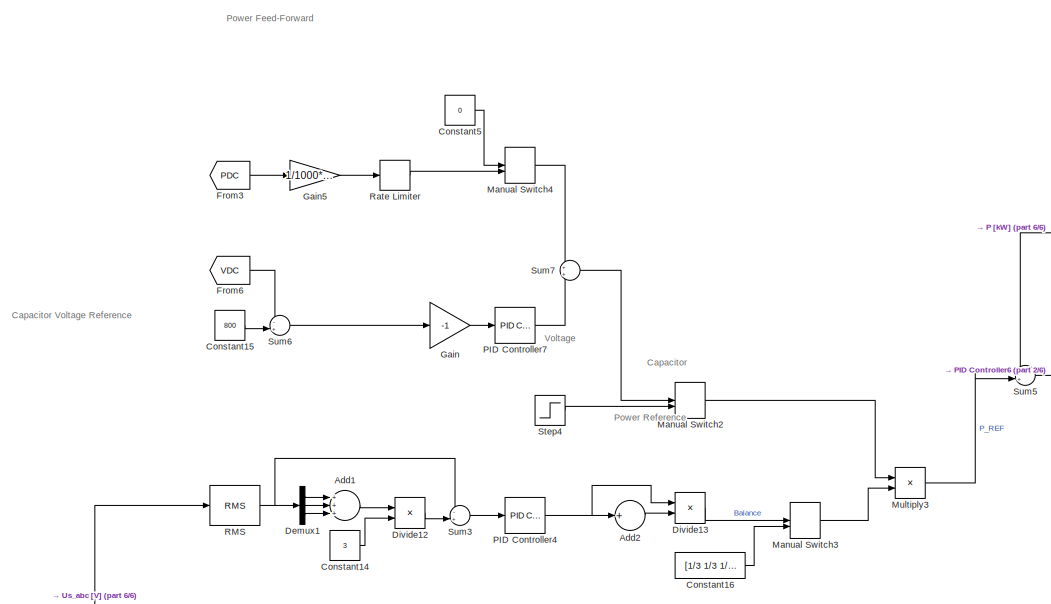
[diagram: root canvas - part 1/6, top center region]
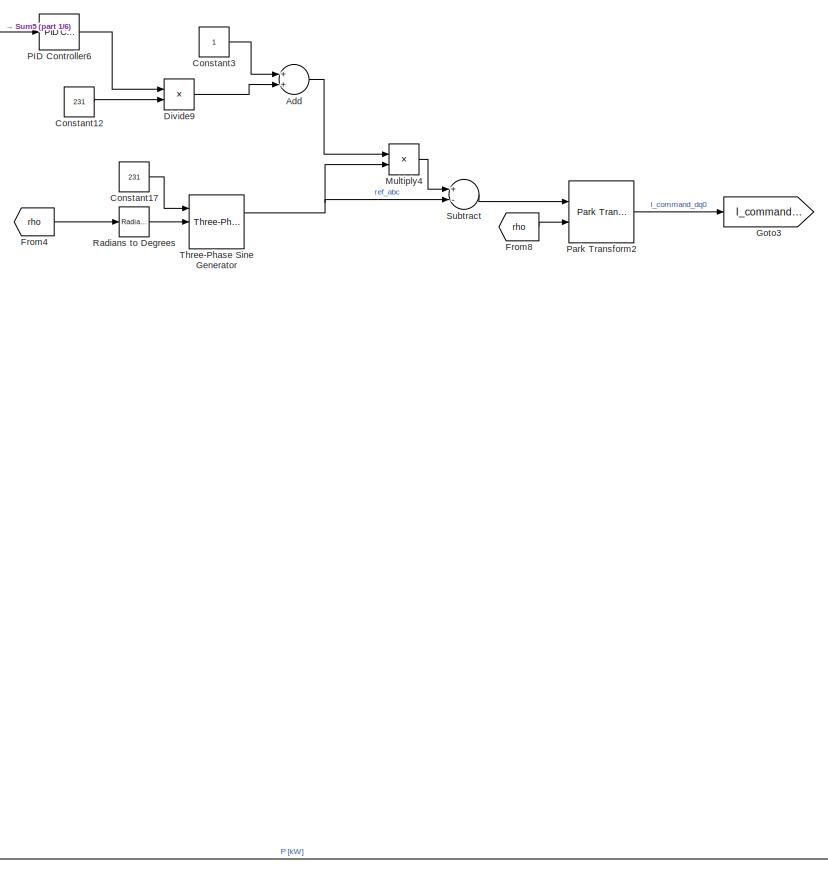
[diagram: root canvas - part 2/6, middle right region]
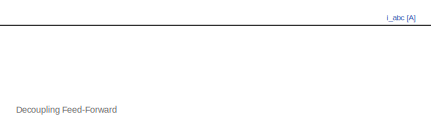
[diagram: root canvas - part 3/6, middle left region]
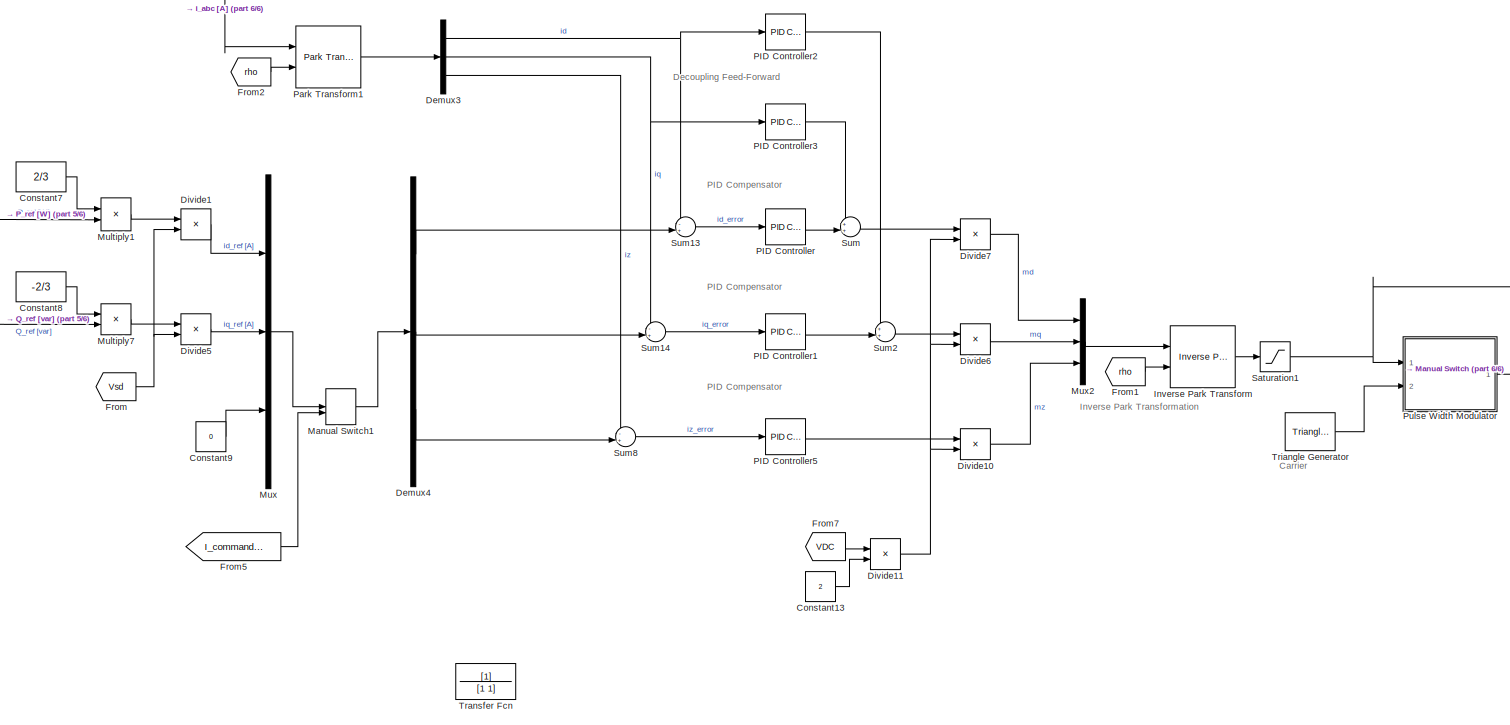
[diagram: root canvas - part 4/6, bottom left region]
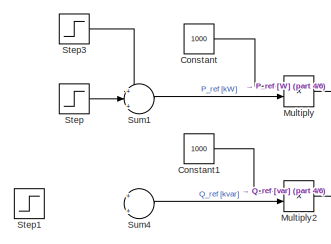
[diagram: root canvas - part 5/6, middle left region]
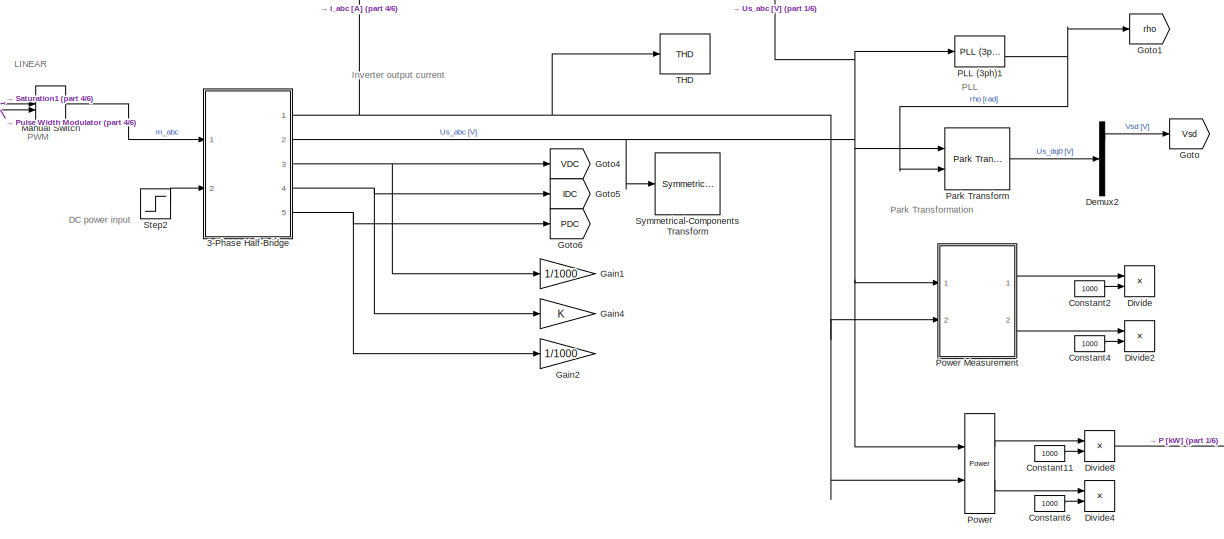
[diagram: root canvas - part 6/6, bottom center region]
MODEL slx_793eaf9426d9
KIND model
CONFIG AbsTol = auto
CONFIG EnableMultiTasking = on
CONFIG FixedStep = auto
CONFIG MaxStep = 0.01
CONFIG MinStep = auto
CONFIG RelTol = 1e-3
CONFIG SampleTimeConstraint = Unconstrained
CONFIG Solver = VariableStepAuto
CONFIG SolverName = VariableStepAuto
CONFIG StartTime = 0.0
CONFIG StopTime = 0.75
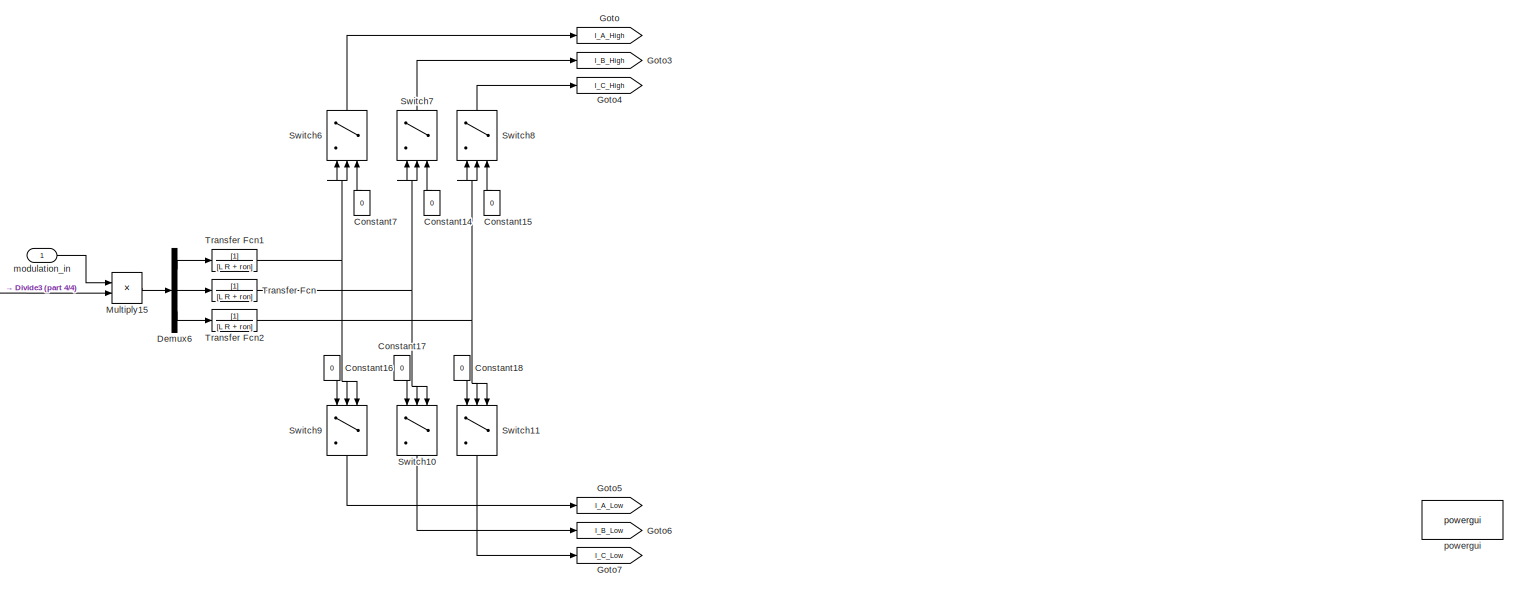
[diagram: 3-Phase Half-Bridge - part 1/4, top right region]
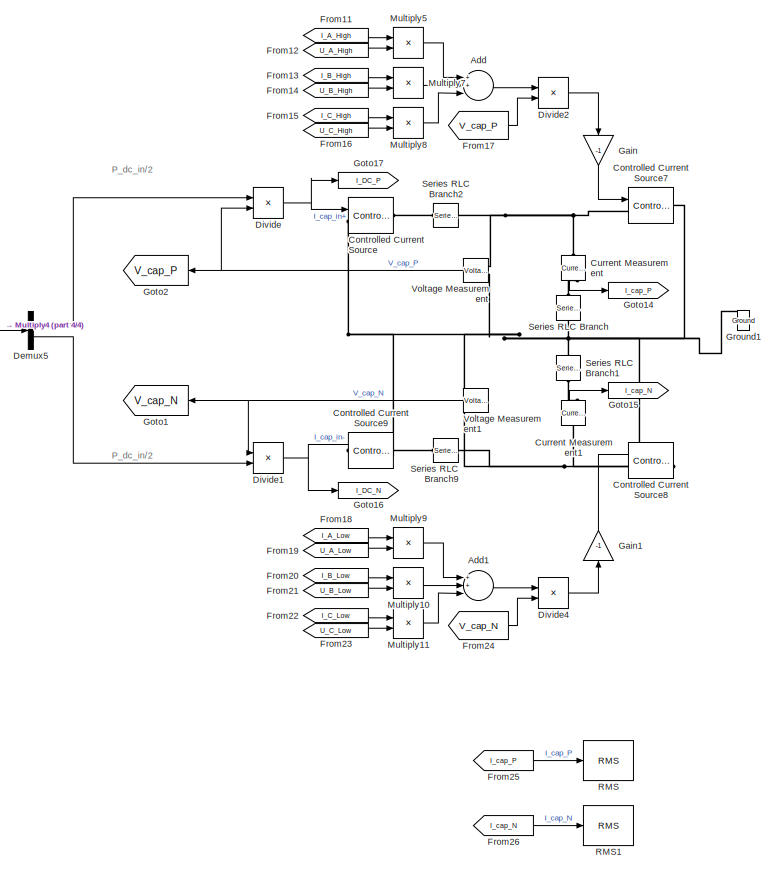
[diagram: 3-Phase Half-Bridge - part 2/4, bottom center region]
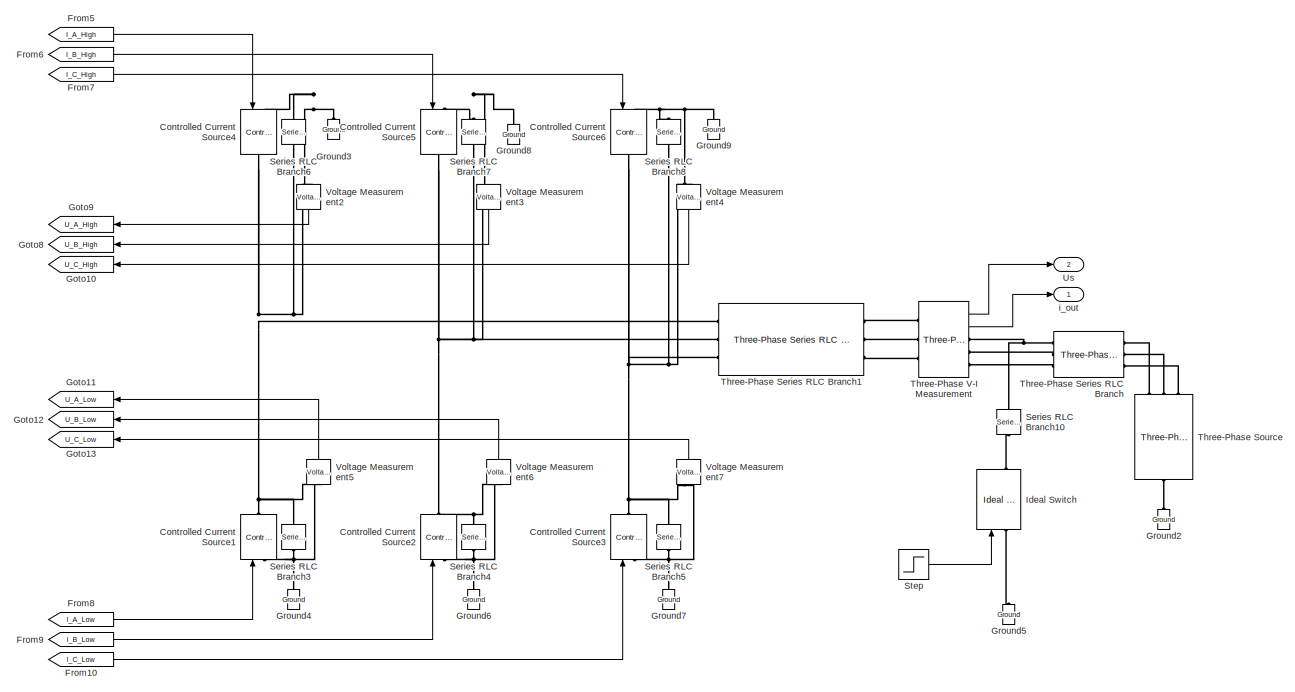
[diagram: 3-Phase Half-Bridge - part 3/4, bottom right region]
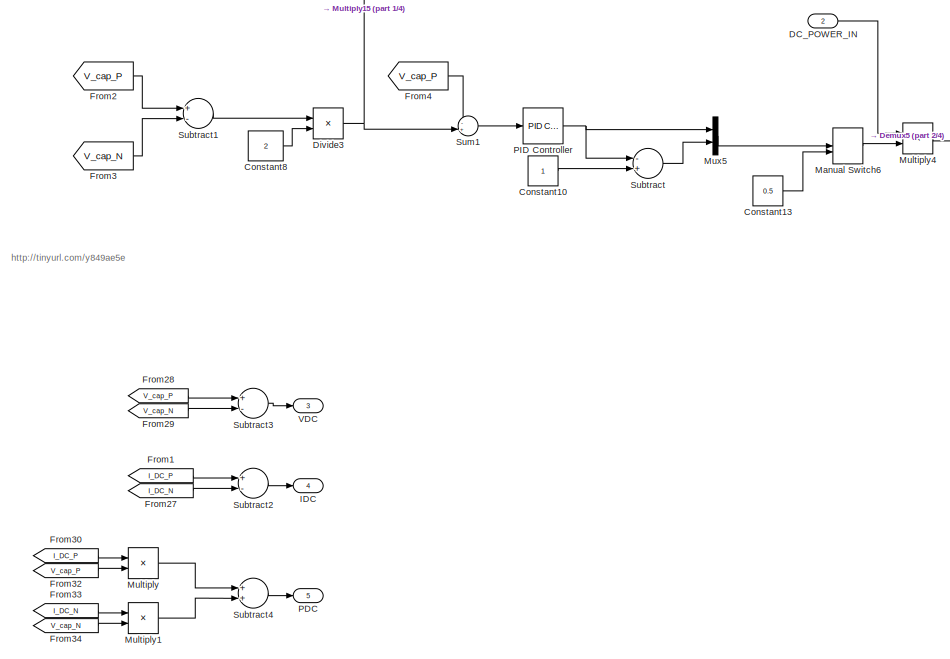
[diagram: 3-Phase Half-Bridge - part 4/4, bottom left region]
BLOCK [SubSystem] 3-Phase Half-Bridge
  Ports = [2, 5]
  RequestExecContextInheritance = off
BLOCK [Sum] 3-Phase Half-Bridge/Add
  InputSameDT = off
  Inputs = 3
  OutDataTypeStr = Inherit: Inherit via internal rule
  Ports = [3, 1]
  SaturateOnIntegerOverflow = off
BLOCK [Sum] 3-Phase Half-Bridge/Add1
  InputSameDT = off
  Inputs = 3
  OutDataTypeStr = Inherit: Inherit via internal rule
  Ports = [3, 1]
  SaturateOnIntegerOverflow = off
BLOCK [Constant] 3-Phase Half-Bridge/Constant10
BLOCK [Constant] 3-Phase Half-Bridge/Constant13
  Value = 0.5
BLOCK [Constant] 3-Phase Half-Bridge/Constant14
  Value = 0
BLOCK [Constant] 3-Phase Half-Bridge/Constant15
  Value = 0
BLOCK [Constant] 3-Phase Half-Bridge/Constant16
  Value = 0
BLOCK [Constant] 3-Phase Half-Bridge/Constant17
  Value = 0
BLOCK [Constant] 3-Phase Half-Bridge/Constant18
  Value = 0
BLOCK [Constant] 3-Phase Half-Bridge/Constant7
  Value = 0
BLOCK [Constant] 3-Phase Half-Bridge/Constant8
  Value = 2
BLOCK [Reference] 3-Phase Half-Bridge/Controlled Current Source  REF=powerlib/Electrical
Sources/Controlled Current Source
  Ports = [1, 0, 0, 0, 0, 1, 1]
  SourceBlock = powerlib/Electrical\nSources/Controlled Current Source
  SourceProductBaseCode = PS
  SourceProductName = Simscape Power Systems
  SourceType = Controlled Current Source
BLOCK [Reference] 3-Phase Half-Bridge/Controlled Current Source1  REF=powerlib/Electrical
Sources/Controlled Current Source
  Ports = [1, 0, 0, 0, 0, 1, 1]
  SourceBlock = powerlib/Electrical\nSources/Controlled Current Source
  SourceProductBaseCode = PS
  SourceProductName = Simscape Power Systems
  SourceType = Controlled Current Source
BLOCK [Reference] 3-Phase Half-Bridge/Controlled Current Source2  REF=powerlib/Electrical
Sources/Controlled Current Source
  Ports = [1, 0, 0, 0, 0, 1, 1]
  SourceBlock = powerlib/Electrical\nSources/Controlled Current Source
  SourceProductBaseCode = PS
  SourceProductName = Simscape Power Systems
  SourceType = Controlled Current Source
BLOCK [Reference] 3-Phase Half-Bridge/Controlled Current Source3  REF=powerlib/Electrical
Sources/Controlled Current Source
  Ports = [1, 0, 0, 0, 0, 1, 1]
  SourceBlock = powerlib/Electrical\nSources/Controlled Current Source
  SourceProductBaseCode = PS
  SourceProductName = Simscape Power Systems
  SourceType = Controlled Current Source
BLOCK [Reference] 3-Phase Half-Bridge/Controlled Current Source4  REF=powerlib/Electrical
Sources/Controlled Current Source
  Ports = [1, 0, 0, 0, 0, 1, 1]
  SourceBlock = powerlib/Electrical\nSources/Controlled Current Source
  SourceProductBaseCode = PS
  SourceProductName = Simscape Power Systems
  SourceType = Controlled Current Source
BLOCK [Reference] 3-Phase Half-Bridge/Controlled Current Source5  REF=powerlib/Electrical
Sources/Controlled Current Source
  Ports = [1, 0, 0, 0, 0, 1, 1]
  SourceBlock = powerlib/Electrical\nSources/Controlled Current Source
  SourceProductBaseCode = PS
  SourceProductName = Simscape Power Systems
  SourceType = Controlled Current Source
BLOCK [Reference] 3-Phase Half-Bridge/Controlled Current Source6  REF=powerlib/Electrical
Sources/Controlled Current Source
  Ports = [1, 0, 0, 0, 0, 1, 1]
  SourceBlock = powerlib/Electrical\nSources/Controlled Current Source
  SourceProductBaseCode = PS
  SourceProductName = Simscape Power Systems
  SourceType = Controlled Current Source
BLOCK [Reference] 3-Phase Half-Bridge/Controlled Current Source7  REF=powerlib/Electrical
Sources/Controlled Current Source
  Ports = [1, 0, 0, 0, 0, 1, 1]
  SourceBlock = powerlib/Electrical\nSources/Controlled Current Source
  SourceProductBaseCode = PS
  SourceProductName = Simscape Power Systems
  SourceType = Controlled Current Source
BLOCK [Reference] 3-Phase Half-Bridge/Controlled Current Source8  REF=powerlib/Electrical
Sources/Controlled Current Source
  Ports = [1, 0, 0, 0, 0, 1, 1]
  SourceBlock = powerlib/Electrical\nSources/Controlled Current Source
  SourceProductBaseCode = PS
  SourceProductName = Simscape Power Systems
  SourceType = Controlled Current Source
BLOCK [Reference] 3-Phase Half-Bridge/Controlled Current Source9  REF=powerlib/Electrical
Sources/Controlled Current Source
  Ports = [1, 0, 0, 0, 0, 1, 1]
  SourceBlock = powerlib/Electrical\nSources/Controlled Current Source
  SourceProductBaseCode = PS
  SourceProductName = Simscape Power Systems
  SourceType = Controlled Current Source
BLOCK [Reference] 3-Phase Half-Bridge/Current Measurement  REF=powerlib/Measurements/Current Measurement
  Ports = [0, 1, 0, 0, 0, 1, 1]
  SourceBlock = powerlib/Measurements/Current Measurement
  SourceProductBaseCode = PS
  SourceProductName = Simscape Power Systems
  SourceType = Current Measurement
  UserDataPersistent = on
BLOCK [Reference] 3-Phase Half-Bridge/Current Measurement1  REF=powerlib/Measurements/Current Measurement
  Ports = [0, 1, 0, 0, 0, 1, 1]
  SourceBlock = powerlib/Measurements/Current Measurement
  SourceProductBaseCode = PS
  SourceProductName = Simscape Power Systems
  SourceType = Current Measurement
  UserDataPersistent = on
BLOCK [Inport] 3-Phase Half-Bridge/DC_POWER_IN
  IconDisplay = Port number
  Port = 2
BLOCK [Demux] 3-Phase Half-Bridge/Demux5
  DisplayOption = bar
  Outputs = 2
  Ports = [1, 2]
BLOCK [Demux] 3-Phase Half-Bridge/Demux6
  DisplayOption = bar
  Outputs = 3
  Ports = [1, 3]
BLOCK [Product] 3-Phase Half-Bridge/Divide
  InputSameDT = off
  Inputs = */
  OutDataTypeStr = Inherit: Inherit via internal rule
  Ports = [2, 1]
  RndMeth = Floor
  SaturateOnIntegerOverflow = off
BLOCK [Product] 3-Phase Half-Bridge/Divide1
  InputSameDT = off
  Inputs = /*
  OutDataTypeStr = Inherit: Inherit via internal rule
  Ports = [2, 1]
  RndMeth = Floor
  SaturateOnIntegerOverflow = off
BLOCK [Product] 3-Phase Half-Bridge/Divide2
  InputSameDT = off
  Inputs = */
  OutDataTypeStr = Inherit: Inherit via internal rule
  Ports = [2, 1]
  RndMeth = Floor
  SaturateOnIntegerOverflow = off
BLOCK [Product] 3-Phase Half-Bridge/Divide3
  InputSameDT = off
  Inputs = */
  OutDataTypeStr = Inherit: Inherit via internal rule
  Ports = [2, 1]
  RndMeth = Floor
  SaturateOnIntegerOverflow = off
BLOCK [Product] 3-Phase Half-Bridge/Divide4
  InputSameDT = off
  Inputs = */
  OutDataTypeStr = Inherit: Inherit via internal rule
  Ports = [2, 1]
  RndMeth = Floor
  SaturateOnIntegerOverflow = off
BLOCK [From] 3-Phase Half-Bridge/From1
  GotoTag = I_DC_P
BLOCK [From] 3-Phase Half-Bridge/From10
  GotoTag = I_C_Low
BLOCK [From] 3-Phase Half-Bridge/From11
  GotoTag = I_A_High
BLOCK [From] 3-Phase Half-Bridge/From12
  GotoTag = U_A_High
BLOCK [From] 3-Phase Half-Bridge/From13
  GotoTag = I_B_High
BLOCK [From] 3-Phase Half-Bridge/From14
  GotoTag = U_B_High
BLOCK [From] 3-Phase Half-Bridge/From15
  GotoTag = I_C_High
BLOCK [From] 3-Phase Half-Bridge/From16
  GotoTag = U_C_High
BLOCK [From] 3-Phase Half-Bridge/From17
  GotoTag = V_cap_P
BLOCK [From] 3-Phase Half-Bridge/From18
  GotoTag = I_A_Low
BLOCK [From] 3-Phase Half-Bridge/From19
  GotoTag = U_A_Low
BLOCK [From] 3-Phase Half-Bridge/From2
  GotoTag = V_cap_P
BLOCK [From] 3-Phase Half-Bridge/From20
  GotoTag = I_B_Low
BLOCK [From] 3-Phase Half-Bridge/From21
  GotoTag = U_B_Low
BLOCK [From] 3-Phase Half-Bridge/From22
  GotoTag = I_C_Low
BLOCK [From] 3-Phase Half-Bridge/From23
  GotoTag = U_C_Low
BLOCK [From] 3-Phase Half-Bridge/From24
  GotoTag = V_cap_N
BLOCK [From] 3-Phase Half-Bridge/From25
  GotoTag = I_cap_P
BLOCK [From] 3-Phase Half-Bridge/From26
  GotoTag = I_cap_N
BLOCK [From] 3-Phase Half-Bridge/From27
  GotoTag = I_DC_N
BLOCK [From] 3-Phase Half-Bridge/From28
  GotoTag = V_cap_P
BLOCK [From] 3-Phase Half-Bridge/From29
  GotoTag = V_cap_N
BLOCK [From] 3-Phase Half-Bridge/From3
  GotoTag = V_cap_N
BLOCK [From] 3-Phase Half-Bridge/From30
  GotoTag = I_DC_P
BLOCK [From] 3-Phase Half-Bridge/From32
  GotoTag = V_cap_P
BLOCK [From] 3-Phase Half-Bridge/From33
  GotoTag = I_DC_N
BLOCK [From] 3-Phase Half-Bridge/From34
  GotoTag = V_cap_N
BLOCK [From] 3-Phase Half-Bridge/From4
  GotoTag = V_cap_P
BLOCK [From] 3-Phase Half-Bridge/From5
  GotoTag = I_A_High
BLOCK [From] 3-Phase Half-Bridge/From6
  GotoTag = I_B_High
BLOCK [From] 3-Phase Half-Bridge/From7
  GotoTag = I_C_High
BLOCK [From] 3-Phase Half-Bridge/From8
  GotoTag = I_A_Low
BLOCK [From] 3-Phase Half-Bridge/From9
  GotoTag = I_B_Low
BLOCK [Gain] 3-Phase Half-Bridge/Gain
  Gain = -1
  OutDataTypeStr = Inherit: Inherit via internal rule
  ParamDataTypeStr = Inherit: Inherit via internal rule
  SaturateOnIntegerOverflow = off
BLOCK [Gain] 3-Phase Half-Bridge/Gain1
  Gain = -1
  OutDataTypeStr = Inherit: Inherit via internal rule
  ParamDataTypeStr = Inherit: Inherit via internal rule
  SaturateOnIntegerOverflow = off
BLOCK [Goto] 3-Phase Half-Bridge/Goto
  GotoTag = I_A_High
BLOCK [Goto] 3-Phase Half-Bridge/Goto1
  GotoTag = V_cap_N
BLOCK [Goto] 3-Phase Half-Bridge/Goto10
  GotoTag = U_C_High
BLOCK [Goto] 3-Phase Half-Bridge/Goto11
  GotoTag = U_A_Low
BLOCK [Goto] 3-Phase Half-Bridge/Goto12
  GotoTag = U_B_Low
BLOCK [Goto] 3-Phase Half-Bridge/Goto13
  GotoTag = U_C_Low
BLOCK [Goto] 3-Phase Half-Bridge/Goto14
  GotoTag = I_cap_P
BLOCK [Goto] 3-Phase Half-Bridge/Goto15
  GotoTag = I_cap_N
BLOCK [Goto] 3-Phase Half-Bridge/Goto16
  GotoTag = I_DC_N
BLOCK [Goto] 3-Phase Half-Bridge/Goto17
  GotoTag = I_DC_P
BLOCK [Goto] 3-Phase Half-Bridge/Goto2
  GotoTag = V_cap_P
BLOCK [Goto] 3-Phase Half-Bridge/Goto3
  GotoTag = I_B_High
BLOCK [Goto] 3-Phase Half-Bridge/Goto4
  GotoTag = I_C_High
BLOCK [Goto] 3-Phase Half-Bridge/Goto5
  GotoTag = I_A_Low
BLOCK [Goto] 3-Phase Half-Bridge/Goto6
  GotoTag = I_B_Low
BLOCK [Goto] 3-Phase Half-Bridge/Goto7
  GotoTag = I_C_Low
BLOCK [Goto] 3-Phase Half-Bridge/Goto8
  GotoTag = U_B_High
BLOCK [Goto] 3-Phase Half-Bridge/Goto9
  GotoTag = U_A_High
BLOCK [Reference] 3-Phase Half-Bridge/Ground1  REF=powerlib/Elements/Ground
  Ports = [0, 0, 0, 0, 0, 1]
  SourceBlock = powerlib/Elements/Ground
  SourceProductBaseCode = PS
  SourceProductName = Simscape Electrical
  SourceType = Ground
BLOCK [Reference] 3-Phase Half-Bridge/Ground2  REF=powerlib/Elements/Ground
  Ports = [0, 0, 0, 0, 0, 1]
  SourceBlock = powerlib/Elements/Ground
  SourceProductBaseCode = PS
  SourceProductName = Simscape Electrical
  SourceType = Ground
BLOCK [Reference] 3-Phase Half-Bridge/Ground3  REF=powerlib/Elements/Ground
  Ports = [0, 0, 0, 0, 0, 1]
  SourceBlock = powerlib/Elements/Ground
  SourceProductBaseCode = PS
  SourceProductName = Simscape Electrical
  SourceType = Ground
BLOCK [Reference] 3-Phase Half-Bridge/Ground4  REF=powerlib/Elements/Ground
  Ports = [0, 0, 0, 0, 0, 1]
  SourceBlock = powerlib/Elements/Ground
  SourceProductBaseCode = PS
  SourceProductName = Simscape Electrical
  SourceType = Ground
BLOCK [Reference] 3-Phase Half-Bridge/Ground5  REF=powerlib/Elements/Ground
  Ports = [0, 0, 0, 0, 0, 1]
  SourceBlock = powerlib/Elements/Ground
  SourceProductBaseCode = PS
  SourceProductName = Simscape Electrical
  SourceType = Ground
BLOCK [Reference] 3-Phase Half-Bridge/Ground6  REF=powerlib/Elements/Ground
  Ports = [0, 0, 0, 0, 0, 1]
  SourceBlock = powerlib/Elements/Ground
  SourceProductBaseCode = PS
  SourceProductName = Simscape Electrical
  SourceType = Ground
BLOCK [Reference] 3-Phase Half-Bridge/Ground7  REF=powerlib/Elements/Ground
  Ports = [0, 0, 0, 0, 0, 1]
  SourceBlock = powerlib/Elements/Ground
  SourceProductBaseCode = PS
  SourceProductName = Simscape Electrical
  SourceType = Ground
BLOCK [Reference] 3-Phase Half-Bridge/Ground8  REF=powerlib/Elements/Ground
  Ports = [0, 0, 0, 0, 0, 1]
  SourceBlock = powerlib/Elements/Ground
  SourceProductBaseCode = PS
  SourceProductName = Simscape Electrical
  SourceType = Ground
BLOCK [Reference] 3-Phase Half-Bridge/Ground9  REF=powerlib/Elements/Ground
  Ports = [0, 0, 0, 0, 0, 1]
  SourceBlock = powerlib/Elements/Ground
  SourceProductBaseCode = PS
  SourceProductName = Simscape Electrical
  SourceType = Ground
BLOCK [Outport] 3-Phase Half-Bridge/IDC
  IconDisplay = Port number
  Port = 4
BLOCK [Reference] 3-Phase Half-Bridge/Ideal Switch  REF=powerlib/Power
Electronics/Ideal Switch
  Ports = [1, 1, 0, 0, 0, 1, 1]
  SourceBlock = powerlib/Power\nElectronics/Ideal Switch
  SourceProductBaseCode = PS
  SourceProductName = Simscape Power Systems
  SourceType = Ideal Switch
BLOCK [ManualSwitch] 3-Phase Half-Bridge/Manual Switch6
  CurrentSetting = 0
BLOCK [Product] 3-Phase Half-Bridge/Multiply
  InputSameDT = off
  OutDataTypeStr = Inherit: Inherit via internal rule
  Ports = [2, 1]
  RndMeth = Floor
  SaturateOnIntegerOverflow = off
BLOCK [Product] 3-Phase Half-Bridge/Multiply1
  InputSameDT = off
  OutDataTypeStr = Inherit: Inherit via internal rule
  Ports = [2, 1]
  RndMeth = Floor
  SaturateOnIntegerOverflow = off
BLOCK [Product] 3-Phase Half-Bridge/Multiply10
  InputSameDT = off
  OutDataTypeStr = Inherit: Inherit via internal rule
  Ports = [2, 1]
  RndMeth = Floor
  SaturateOnIntegerOverflow = off
BLOCK [Product] 3-Phase Half-Bridge/Multiply11
  InputSameDT = off
  OutDataTypeStr = Inherit: Inherit via internal rule
  Ports = [2, 1]
  RndMeth = Floor
  SaturateOnIntegerOverflow = off
BLOCK [Product] 3-Phase Half-Bridge/Multiply15
  InputSameDT = off
  OutDataTypeStr = Inherit: Inherit via internal rule
  Ports = [2, 1]
  RndMeth = Floor
  SaturateOnIntegerOverflow = off
BLOCK [Product] 3-Phase Half-Bridge/Multiply4
  InputSameDT = off
  OutDataTypeStr = Inherit: Inherit via internal rule
  Ports = [2, 1]
  RndMeth = Floor
  SaturateOnIntegerOverflow = off
BLOCK [Product] 3-Phase Half-Bridge/Multiply5
  InputSameDT = off
  OutDataTypeStr = Inherit: Inherit via internal rule
  Ports = [2, 1]
  RndMeth = Floor
  SaturateOnIntegerOverflow = off
BLOCK [Product] 3-Phase Half-Bridge/Multiply7
  InputSameDT = off
  OutDataTypeStr = Inherit: Inherit via internal rule
  Ports = [2, 1]
  RndMeth = Floor
  SaturateOnIntegerOverflow = off
BLOCK [Product] 3-Phase Half-Bridge/Multiply8
  InputSameDT = off
  OutDataTypeStr = Inherit: Inherit via internal rule
  Ports = [2, 1]
  RndMeth = Floor
  SaturateOnIntegerOverflow = off
BLOCK [Product] 3-Phase Half-Bridge/Multiply9
  InputSameDT = off
  OutDataTypeStr = Inherit: Inherit via internal rule
  Ports = [2, 1]
  RndMeth = Floor
  SaturateOnIntegerOverflow = off
BLOCK [Mux] 3-Phase Half-Bridge/Mux5
  DisplayOption = bar
  Inputs = 2
  Ports = [2, 1]
BLOCK [Outport] 3-Phase Half-Bridge/PDC
  IconDisplay = Port number
  Port = 5
BLOCK [Reference] 3-Phase Half-Bridge/PID Controller  REF=simulink/Continuous/PID Controller
  Ports = [1, 1]
  SourceBlock = simulink/Continuous/PID Controller
  SourceProductBaseCode = SL
  SourceProductName = Simulink
  SourceType = PID 1dof
BLOCK [Reference] 3-Phase Half-Bridge/RMS  REF=powerlib_meascontrol/Measurements/RMS
  Ports = [1, 1]
  SourceBlock = powerlib_meascontrol/Measurements/RMS
  SourceProductBaseCode = PS
  SourceProductName = Simscape Power Systems
  SourceType = RMS
BLOCK [Reference] 3-Phase Half-Bridge/RMS1  REF=powerlib_meascontrol/Measurements/RMS
  Ports = [1, 1]
  SourceBlock = powerlib_meascontrol/Measurements/RMS
  SourceProductBaseCode = PS
  SourceProductName = Simscape Power Systems
  SourceType = RMS
BLOCK [Reference] 3-Phase Half-Bridge/Series RLC Branch  REF=powerlib/Elements/Series RLC Branch
  Ports = [0, 0, 0, 0, 0, 1, 1]
  SourceBlock = powerlib/Elements/Series RLC Branch
  SourceProductBaseCode = PS
  SourceProductName = Simscape Power Systems
  SourceType = Series RLC Branch
BLOCK [Reference] 3-Phase Half-Bridge/Series RLC Branch1  REF=powerlib/Elements/Series RLC Branch
  Ports = [0, 0, 0, 0, 0, 1, 1]
  SourceBlock = powerlib/Elements/Series RLC Branch
  SourceProductBaseCode = PS
  SourceProductName = Simscape Power Systems
  SourceType = Series RLC Branch
BLOCK [Reference] 3-Phase Half-Bridge/Series RLC Branch10  REF=powerlib/Elements/Series RLC Branch
  Ports = [0, 0, 0, 0, 0, 1, 1]
  SourceBlock = powerlib/Elements/Series RLC Branch
  SourceProductBaseCode = PS
  SourceProductName = Simscape Power Systems
  SourceType = Series RLC Branch
BLOCK [Reference] 3-Phase Half-Bridge/Series RLC Branch2  REF=powerlib/Elements/Series RLC Branch
  Ports = [0, 0, 0, 0, 0, 1, 1]
  SourceBlock = powerlib/Elements/Series RLC Branch
  SourceProductBaseCode = PS
  SourceProductName = Simscape Power Systems
  SourceType = Series RLC Branch
BLOCK [Reference] 3-Phase Half-Bridge/Series RLC Branch3  REF=powerlib/Elements/Series RLC Branch
  Ports = [0, 0, 0, 0, 0, 1, 1]
  SourceBlock = powerlib/Elements/Series RLC Branch
  SourceProductBaseCode = PS
  SourceProductName = Simscape Power Systems
  SourceType = Series RLC Branch
BLOCK [Reference] 3-Phase Half-Bridge/Series RLC Branch4  REF=powerlib/Elements/Series RLC Branch
  Ports = [0, 0, 0, 0, 0, 1, 1]
  SourceBlock = powerlib/Elements/Series RLC Branch
  SourceProductBaseCode = PS
  SourceProductName = Simscape Power Systems
  SourceType = Series RLC Branch
BLOCK [Reference] 3-Phase Half-Bridge/Series RLC Branch5  REF=powerlib/Elements/Series RLC Branch
  Ports = [0, 0, 0, 0, 0, 1, 1]
  SourceBlock = powerlib/Elements/Series RLC Branch
  SourceProductBaseCode = PS
  SourceProductName = Simscape Power Systems
  SourceType = Series RLC Branch
BLOCK [Reference] 3-Phase Half-Bridge/Series RLC Branch6  REF=powerlib/Elements/Series RLC Branch
  Ports = [0, 0, 0, 0, 0, 1, 1]
  SourceBlock = powerlib/Elements/Series RLC Branch
  SourceProductBaseCode = PS
  SourceProductName = Simscape Power Systems
  SourceType = Series RLC Branch
BLOCK [Reference] 3-Phase Half-Bridge/Series RLC Branch7  REF=powerlib/Elements/Series RLC Branch
  Ports = [0, 0, 0, 0, 0, 1, 1]
  SourceBlock = powerlib/Elements/Series RLC Branch
  SourceProductBaseCode = PS
  SourceProductName = Simscape Power Systems
  SourceType = Series RLC Branch
BLOCK [Reference] 3-Phase Half-Bridge/Series RLC Branch8  REF=powerlib/Elements/Series RLC Branch
  Ports = [0, 0, 0, 0, 0, 1, 1]
  SourceBlock = powerlib/Elements/Series RLC Branch
  SourceProductBaseCode = PS
  SourceProductName = Simscape Power Systems
  SourceType = Series RLC Branch
BLOCK [Reference] 3-Phase Half-Bridge/Series RLC Branch9  REF=powerlib/Elements/Series RLC Branch
  Ports = [0, 0, 0, 0, 0, 1, 1]
  SourceBlock = powerlib/Elements/Series RLC Branch
  SourceProductBaseCode = PS
  SourceProductName = Simscape Power Systems
  SourceType = Series RLC Branch
BLOCK [Step] 3-Phase Half-Bridge/Step
  SampleTime = 0
  Time = 0.25
BLOCK [Sum] 3-Phase Half-Bridge/Subtract
  InputSameDT = off
  Inputs = -+
  OutDataTypeStr = Inherit: Inherit via internal rule
  Ports = [2, 1]
  SaturateOnIntegerOverflow = off
BLOCK [Sum] 3-Phase Half-Bridge/Subtract1
  InputSameDT = off
  Inputs = +-
  OutDataTypeStr = Inherit: Inherit via internal rule
  Ports = [2, 1]
  SaturateOnIntegerOverflow = off
BLOCK [Sum] 3-Phase Half-Bridge/Subtract2
  InputSameDT = off
  Inputs = +-
  OutDataTypeStr = Inherit: Inherit via internal rule
  Ports = [2, 1]
  SaturateOnIntegerOverflow = off
BLOCK [Sum] 3-Phase Half-Bridge/Subtract3
  InputSameDT = off
  Inputs = +-
  OutDataTypeStr = Inherit: Inherit via internal rule
  Ports = [2, 1]
  SaturateOnIntegerOverflow = off
BLOCK [Sum] 3-Phase Half-Bridge/Subtract4
  InputSameDT = off
  OutDataTypeStr = Inherit: Inherit via internal rule
  Ports = [2, 1]
  SaturateOnIntegerOverflow = off
BLOCK [Sum] 3-Phase Half-Bridge/Sum1
  IconShape = round
  InputSameDT = off
  Inputs = -+|
  OutDataTypeStr = Inherit: Inherit via internal rule
  Ports = [2, 1]
  SaturateOnIntegerOverflow = off
BLOCK [Switch] 3-Phase Half-Bridge/Switch10
  Criteria = u2 > Threshold
  InputSameDT = off
  SaturateOnIntegerOverflow = off
BLOCK [Switch] 3-Phase Half-Bridge/Switch11
  Criteria = u2 > Threshold
  InputSameDT = off
  SaturateOnIntegerOverflow = off
BLOCK [Switch] 3-Phase Half-Bridge/Switch6
  Criteria = u2 > Threshold
  InputSameDT = off
  SaturateOnIntegerOverflow = off
BLOCK [Switch] 3-Phase Half-Bridge/Switch7
  Criteria = u2 > Threshold
  InputSameDT = off
  SaturateOnIntegerOverflow = off
BLOCK [Switch] 3-Phase Half-Bridge/Switch8
  Criteria = u2 > Threshold
  InputSameDT = off
  SaturateOnIntegerOverflow = off
BLOCK [Switch] 3-Phase Half-Bridge/Switch9
  Criteria = u2 > Threshold
  InputSameDT = off
  SaturateOnIntegerOverflow = off
BLOCK [Reference] 3-Phase Half-Bridge/Three-Phase Series RLC Branch  REF=powerlib/Elements/Three-Phase
Series RLC Branch
  AttributesFormatString = \n
  Ports = [0, 0, 0, 0, 0, 3, 3]
  SourceBlock = powerlib/Elements/Three-Phase\nSeries RLC Branch
  SourceProductBaseCode = PS
  SourceProductName = Simscape Power Systems
  SourceType = Three-Phase Series RLC Branch
BLOCK [Reference] 3-Phase Half-Bridge/Three-Phase Series RLC Branch1  REF=powerlib/Elements/Three-Phase
Series RLC Branch
  AttributesFormatString = \n
  Ports = [0, 0, 0, 0, 0, 3, 3]
  SourceBlock = powerlib/Elements/Three-Phase\nSeries RLC Branch
  SourceProductBaseCode = PS
  SourceProductName = Simscape Power Systems
  SourceType = Three-Phase Series RLC Branch
BLOCK [Reference] 3-Phase Half-Bridge/Three-Phase Source  REF=powerlib/Electrical
Sources/Three-Phase Source
  Ports = [0, 0, 0, 0, 0, 1, 3]
  SourceBlock = powerlib/Electrical\nSources/Three-Phase Source
  SourceProductBaseCode = PS
  SourceProductName = Simscape Power Systems
  SourceType = Three-Phase Source
BLOCK [Reference] 3-Phase Half-Bridge/Three-Phase V-I Measurement  REF=powerlib/Measurements/Three-Phase
V-I Measurement
  Ports = [0, 2, 0, 0, 0, 3, 3]
  SourceBlock = powerlib/Measurements/Three-Phase\nV-I Measurement
  SourceProductBaseCode = PS
  SourceProductName = Simscape Power Systems
  SourceType = Three-Phase VI Measurement
BLOCK [TransferFcn] 3-Phase Half-Bridge/Transfer Fcn
  Denominator = [L R + ron]
BLOCK [TransferFcn] 3-Phase Half-Bridge/Transfer Fcn1
  Denominator = [L R + ron]
BLOCK [TransferFcn] 3-Phase Half-Bridge/Transfer Fcn2
  Denominator = [L R + ron]
BLOCK [Outport] 3-Phase Half-Bridge/Us
  IconDisplay = Port number
  Port = 2
BLOCK [Outport] 3-Phase Half-Bridge/VDC
  IconDisplay = Port number
  Port = 3
BLOCK [Reference] 3-Phase Half-Bridge/Voltage Measurement  REF=powerlib/Measurements/Voltage Measurement
  Ports = [0, 1, 0, 0, 0, 2]
  SourceBlock = powerlib/Measurements/Voltage Measurement
  SourceProductBaseCode = PS
  SourceProductName = Simscape Power Systems
  SourceType = Voltage Measurement
  UserDataPersistent = on
BLOCK [Reference] 3-Phase Half-Bridge/Voltage Measurement1  REF=powerlib/Measurements/Voltage Measurement
  Ports = [0, 1, 0, 0, 0, 2]
  SourceBlock = powerlib/Measurements/Voltage Measurement
  SourceProductBaseCode = PS
  SourceProductName = Simscape Power Systems
  SourceType = Voltage Measurement
  UserDataPersistent = on
BLOCK [Reference] 3-Phase Half-Bridge/Voltage Measurement2  REF=powerlib/Measurements/Voltage Measurement
  Ports = [0, 1, 0, 0, 0, 2]
  SourceBlock = powerlib/Measurements/Voltage Measurement
  SourceProductBaseCode = PS
  SourceProductName = Simscape Power Systems
  SourceType = Voltage Measurement
  UserDataPersistent = on
BLOCK [Reference] 3-Phase Half-Bridge/Voltage Measurement3  REF=powerlib/Measurements/Voltage Measurement
  Ports = [0, 1, 0, 0, 0, 2]
  SourceBlock = powerlib/Measurements/Voltage Measurement
  SourceProductBaseCode = PS
  SourceProductName = Simscape Power Systems
  SourceType = Voltage Measurement
  UserDataPersistent = on
BLOCK [Reference] 3-Phase Half-Bridge/Voltage Measurement4  REF=powerlib/Measurements/Voltage Measurement
  Ports = [0, 1, 0, 0, 0, 2]
  SourceBlock = powerlib/Measurements/Voltage Measurement
  SourceProductBaseCode = PS
  SourceProductName = Simscape Power Systems
  SourceType = Voltage Measurement
  UserDataPersistent = on
BLOCK [Reference] 3-Phase Half-Bridge/Voltage Measurement5  REF=powerlib/Measurements/Voltage Measurement
  Ports = [0, 1, 0, 0, 0, 2]
  SourceBlock = powerlib/Measurements/Voltage Measurement
  SourceProductBaseCode = PS
  SourceProductName = Simscape Power Systems
  SourceType = Voltage Measurement
  UserDataPersistent = on
BLOCK [Reference] 3-Phase Half-Bridge/Voltage Measurement6  REF=powerlib/Measurements/Voltage Measurement
  Ports = [0, 1, 0, 0, 0, 2]
  SourceBlock = powerlib/Measurements/Voltage Measurement
  SourceProductBaseCode = PS
  SourceProductName = Simscape Power Systems
  SourceType = Voltage Measurement
  UserDataPersistent = on
BLOCK [Reference] 3-Phase Half-Bridge/Voltage Measurement7  REF=powerlib/Measurements/Voltage Measurement
  Ports = [0, 1, 0, 0, 0, 2]
  SourceBlock = powerlib/Measurements/Voltage Measurement
  SourceProductBaseCode = PS
  SourceProductName = Simscape Power Systems
  SourceType = Voltage Measurement
  UserDataPersistent = on
BLOCK [Outport] 3-Phase Half-Bridge/i_out
  IconDisplay = Port number
BLOCK [Inport] 3-Phase Half-Bridge/modulation_in
  IconDisplay = Port number
BLOCK [Reference] 3-Phase Half-Bridge/powergui  REF=powerlib/powergui
  Ports = []
  Priority = 1
  SourceBlock = powerlib/powergui
  SourceProductBaseCode = PS
  SourceProductName = Simscape Power Systems
  SourceType = PSB option menu block
BLOCK [Sum] Add
  InputSameDT = off
  OutDataTypeStr = Inherit: Inherit via internal rule
  Ports = [2, 1]
  SaturateOnIntegerOverflow = off
BLOCK [Sum] Add1
  InputSameDT = off
  Inputs = +++
  OutDataTypeStr = Inherit: Inherit via internal rule
  Ports = [3, 1]
  SaturateOnIntegerOverflow = off
BLOCK [Sum] Add2
  InputSameDT = off
  Inputs = +
  OutDataTypeStr = Inherit: Inherit via internal rule
  Ports = [1, 1]
  SaturateOnIntegerOverflow = off
BLOCK [Constant] Constant
  Value = 1000
BLOCK [Constant] Constant1
  Value = 1000
BLOCK [Constant] Constant11
  Value = 1000
BLOCK [Constant] Constant12
  Value = 231
BLOCK [Constant] Constant13
  Value = 2
BLOCK [Constant] Constant14
  Value = 3
BLOCK [Constant] Constant15
  Value = 800
BLOCK [Constant] Constant16
  Value = [1/3 1/3 1/3]
BLOCK [Constant] Constant17
  Value = 231
BLOCK [Constant] Constant2
  Value = 1000
BLOCK [Constant] Constant3
BLOCK [Constant] Constant4
  Value = 1000
BLOCK [Constant] Constant5
  Value = 0
BLOCK [Constant] Constant6
  Value = 1000
BLOCK [Constant] Constant7
  Value = 2/3
BLOCK [Constant] Constant8
  Value = -2/3
BLOCK [Constant] Constant9
  Value = 0
BLOCK [Demux] Demux1
  DisplayOption = bar
  Outputs = 3
  Ports = [1, 3]
BLOCK [Demux] Demux2
  DisplayOption = bar
  Outputs = 3
  Ports = [1, 3]
BLOCK [Demux] Demux3
  DisplayOption = bar
  Outputs = 3
  Ports = [1, 3]
BLOCK [Demux] Demux4
  DisplayOption = bar
  Outputs = 3
  Ports = [1, 3]
BLOCK [Product] Divide
  InputSameDT = off
  Inputs = */
  OutDataTypeStr = Inherit: Inherit via internal rule
  Ports = [2, 1]
  RndMeth = Floor
  SaturateOnIntegerOverflow = off
BLOCK [Product] Divide1
  InputSameDT = off
  Inputs = */
  OutDataTypeStr = Inherit: Inherit via internal rule
  Ports = [2, 1]
  RndMeth = Floor
  SaturateOnIntegerOverflow = off
BLOCK [Product] Divide10
  InputSameDT = off
  Inputs = */
  OutDataTypeStr = Inherit: Inherit via internal rule
  Ports = [2, 1]
  RndMeth = Floor
  SaturateOnIntegerOverflow = off
BLOCK [Product] Divide11
  InputSameDT = off
  Inputs = */
  OutDataTypeStr = Inherit: Inherit via internal rule
  Ports = [2, 1]
  RndMeth = Floor
  SaturateOnIntegerOverflow = off
BLOCK [Product] Divide12
  InputSameDT = off
  Inputs = */
  OutDataTypeStr = Inherit: Inherit via internal rule
  Ports = [2, 1]
  RndMeth = Floor
  SaturateOnIntegerOverflow = off
BLOCK [Product] Divide13
  InputSameDT = off
  Inputs = */
  OutDataTypeStr = Inherit: Inherit via internal rule
  Ports = [2, 1]
  RndMeth = Floor
  SaturateOnIntegerOverflow = off
BLOCK [Product] Divide2
  InputSameDT = off
  Inputs = */
  OutDataTypeStr = Inherit: Inherit via internal rule
  Ports = [2, 1]
  RndMeth = Floor
  SaturateOnIntegerOverflow = off
BLOCK [Product] Divide4
  InputSameDT = off
  Inputs = */
  OutDataTypeStr = Inherit: Inherit via internal rule
  Ports = [2, 1]
  RndMeth = Floor
  SaturateOnIntegerOverflow = off
BLOCK [Product] Divide5
  InputSameDT = off
  Inputs = */
  OutDataTypeStr = Inherit: Inherit via internal rule
  Ports = [2, 1]
  RndMeth = Floor
  SaturateOnIntegerOverflow = off
BLOCK [Product] Divide6
  InputSameDT = off
  Inputs = */
  OutDataTypeStr = Inherit: Inherit via internal rule
  Ports = [2, 1]
  RndMeth = Floor
  SaturateOnIntegerOverflow = off
BLOCK [Product] Divide7
  InputSameDT = off
  Inputs = */
  OutDataTypeStr = Inherit: Inherit via internal rule
  Ports = [2, 1]
  RndMeth = Floor
  SaturateOnIntegerOverflow = off
BLOCK [Product] Divide8
  InputSameDT = off
  Inputs = */
  OutDataTypeStr = Inherit: Inherit via internal rule
  Ports = [2, 1]
  RndMeth = Floor
  SaturateOnIntegerOverflow = off
BLOCK [Product] Divide9
  InputSameDT = off
  Inputs = */
  OutDataTypeStr = Inherit: Inherit via internal rule
  Ports = [2, 1]
  RndMeth = Floor
  SaturateOnIntegerOverflow = off
BLOCK [From] From
  GotoTag = Vsd
BLOCK [From] From1
  GotoTag = rho
BLOCK [From] From2
  GotoTag = rho
BLOCK [From] From3
  GotoTag = PDC
BLOCK [From] From4
  GotoTag = rho
BLOCK [From] From5
  GotoTag = I_command_dq0
BLOCK [From] From6
  GotoTag = VDC
BLOCK [From] From7
  GotoTag = VDC
BLOCK [From] From8
  GotoTag = rho
BLOCK [Gain] Gain
  Gain = -1
  OutDataTypeStr = Inherit: Inherit via internal rule
  ParamDataTypeStr = Inherit: Inherit via internal rule
  SaturateOnIntegerOverflow = off
BLOCK [Gain] Gain1
  Gain = 1/1000
  OutDataTypeStr = Inherit: Inherit via internal rule
  ParamDataTypeStr = Inherit: Inherit via internal rule
  SaturateOnIntegerOverflow = off
BLOCK [Gain] Gain2
  Gain = 1/1000
  OutDataTypeStr = Inherit: Inherit via internal rule
  ParamDataTypeStr = Inherit: Inherit via internal rule
  SaturateOnIntegerOverflow = off
BLOCK [Gain] Gain4
  OutDataTypeStr = Inherit: Inherit via internal rule
  ParamDataTypeStr = Inherit: Inherit via internal rule
  SaturateOnIntegerOverflow = off
BLOCK [Gain] Gain5
  Gain = 1/1000*10
  OutDataTypeStr = Inherit: Inherit via internal rule
  ParamDataTypeStr = Inherit: Inherit via internal rule
  SaturateOnIntegerOverflow = off
BLOCK [Goto] Goto
  GotoTag = Vsd
BLOCK [Goto] Goto1
  GotoTag = rho
BLOCK [Goto] Goto3
  GotoTag = I_command_dq0
BLOCK [Goto] Goto4
  GotoTag = VDC
BLOCK [Goto] Goto5
  GotoTag = IDC
BLOCK [Goto] Goto6
  GotoTag = PDC
BLOCK [Reference] Inverse Park Transform  REF=peTransforms/Inverse
Park Transform
  Ports = [2, 1]
  SourceBlock = peTransforms/Inverse\nPark Transform
  SourceType = Inverse Park Transform
BLOCK [ManualSwitch] Manual Switch
BLOCK [ManualSwitch] Manual Switch1
  CurrentSetting = 0
BLOCK [ManualSwitch] Manual Switch2
BLOCK [ManualSwitch] Manual Switch3
BLOCK [ManualSwitch] Manual Switch4
  CurrentSetting = 0
BLOCK [Product] Multiply
  InputSameDT = off
  OutDataTypeStr = Inherit: Inherit via internal rule
  Ports = [2, 1]
  RndMeth = Floor
  SaturateOnIntegerOverflow = off
BLOCK [Product] Multiply1
  InputSameDT = off
  OutDataTypeStr = Inherit: Inherit via internal rule
  Ports = [2, 1]
  RndMeth = Floor
  SaturateOnIntegerOverflow = off
BLOCK [Product] Multiply2
  InputSameDT = off
  OutDataTypeStr = Inherit: Inherit via internal rule
  Ports = [2, 1]
  RndMeth = Floor
  SaturateOnIntegerOverflow = off
BLOCK [Product] Multiply3
  InputSameDT = off
  OutDataTypeStr = Inherit: Inherit via internal rule
  Ports = [2, 1]
  RndMeth = Floor
  SaturateOnIntegerOverflow = off
BLOCK [Product] Multiply4
  InputSameDT = off
  OutDataTypeStr = Inherit: Inherit via internal rule
  Ports = [2, 1]
  RndMeth = Floor
  SaturateOnIntegerOverflow = off
BLOCK [Product] Multiply7
  InputSameDT = off
  OutDataTypeStr = Inherit: Inherit via internal rule
  Ports = [2, 1]
  RndMeth = Floor
  SaturateOnIntegerOverflow = off
BLOCK [Mux] Mux
  DisplayOption = bar
  Inputs = 3
  Ports = [3, 1]
BLOCK [Mux] Mux2
  DisplayOption = bar
  Inputs = 3
  Ports = [3, 1]
BLOCK [Reference] PID Controller  REF=simulink/Continuous/PID Controller
  Ports = [1, 1]
  SourceBlock = simulink/Continuous/PID Controller
  SourceProductBaseCode = SL
  SourceProductName = Simulink
  SourceType = PID 1dof
BLOCK [Reference] PID Controller1  REF=simulink/Continuous/PID Controller
  Ports = [1, 1]
  SourceBlock = simulink/Continuous/PID Controller
  SourceProductBaseCode = SL
  SourceProductName = Simulink
  SourceType = PID 1dof
BLOCK [Reference] PID Controller2  REF=simulink/Continuous/PID Controller
  Ports = [1, 1]
  SourceBlock = simulink/Continuous/PID Controller
  SourceProductBaseCode = SL
  SourceProductName = Simulink
  SourceType = PID 1dof
BLOCK [Reference] PID Controller3  REF=simulink/Continuous/PID Controller
  Ports = [1, 1]
  SourceBlock = simulink/Continuous/PID Controller
  SourceProductBaseCode = SL
  SourceProductName = Simulink
  SourceType = PID 1dof
BLOCK [Reference] PID Controller4  REF=simulink/Continuous/PID Controller
  Ports = [1, 1]
  SourceBlock = simulink/Continuous/PID Controller
  SourceProductBaseCode = SL
  SourceProductName = Simulink
  SourceType = PID 1dof
BLOCK [Reference] PID Controller5  REF=simulink/Continuous/PID Controller
  Ports = [1, 1]
  SourceBlock = simulink/Continuous/PID Controller
  SourceProductBaseCode = SL
  SourceProductName = Simulink
  SourceType = PID 1dof
BLOCK [Reference] PID Controller6  REF=simulink/Continuous/PID Controller
  Ports = [1, 1]
  SourceBlock = simulink/Continuous/PID Controller
  SourceProductBaseCode = SL
  SourceProductName = Simulink
  SourceType = PID 1dof
BLOCK [Reference] PID Controller7  REF=simulink/Continuous/PID Controller
  Ports = [1, 1]
  SourceBlock = simulink/Continuous/PID Controller
  SourceProductBaseCode = SL
  SourceProductName = Simulink
  SourceType = PID 1dof
BLOCK [Reference] PLL (3ph)1  REF=powerlib_meascontrol/PLL/PLL
(3ph)
  Ports = [1, 2]
  SourceBlock = powerlib_meascontrol/PLL/PLL\n(3ph)
  SourceProductBaseCode = PS
  SourceProductName = Simscape Electrical
  SourceType = PLL (3ph)
BLOCK [Reference] Park Transform  REF=peTransforms/Park Transform
  Ports = [2, 1]
  SourceBlock = peTransforms/Park Transform
  SourceType = Park Transform
BLOCK [Reference] Park Transform1  REF=peTransforms/Park Transform
  Ports = [2, 1]
  SourceBlock = peTransforms/Park Transform
  SourceType = Park Transform
BLOCK [Reference] Park Transform2  REF=peTransforms/Park Transform
  Ports = [2, 1]
  SourceBlock = peTransforms/Park Transform
  SourceType = Park Transform
BLOCK [Reference] Power  REF=powerlib_meascontrol/Measurements/Power
  Ports = [2, 2]
  SourceBlock = powerlib_meascontrol/Measurements/Power
  SourceProductBaseCode = PS
  SourceProductName = Simscape Electrical
  SourceType = Power
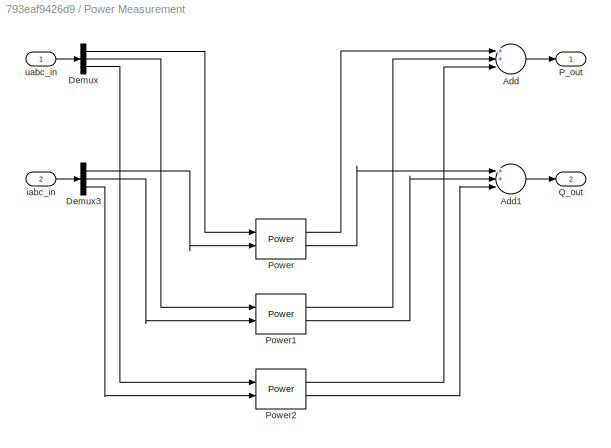
BLOCK [SubSystem] Power Measurement
  Ports = [2, 2]
  RequestExecContextInheritance = off
BLOCK [Sum] Power Measurement/Add
  InputSameDT = off
  Inputs = 3
  OutDataTypeStr = Inherit: Inherit via internal rule
  Ports = [3, 1]
  SaturateOnIntegerOverflow = off
BLOCK [Sum] Power Measurement/Add1
  InputSameDT = off
  Inputs = 3
  OutDataTypeStr = Inherit: Inherit via internal rule
  Ports = [3, 1]
  SaturateOnIntegerOverflow = off
BLOCK [Demux] Power Measurement/Demux
  DisplayOption = bar
  Outputs = 3
  Ports = [1, 3]
BLOCK [Demux] Power Measurement/Demux3
  DisplayOption = bar
  Outputs = 3
  Ports = [1, 3]
BLOCK [Outport] Power Measurement/P_out
  IconDisplay = Port number
BLOCK [Reference] Power Measurement/Power  REF=powerlib_meascontrol/Measurements/Power
  Ports = [2, 2]
  SourceBlock = powerlib_meascontrol/Measurements/Power
  SourceProductBaseCode = PS
  SourceProductName = Simscape Electrical
  SourceType = Power
BLOCK [Reference] Power Measurement/Power1  REF=powerlib_meascontrol/Measurements/Power
  Ports = [2, 2]
  SourceBlock = powerlib_meascontrol/Measurements/Power
  SourceProductBaseCode = PS
  SourceProductName = Simscape Electrical
  SourceType = Power
BLOCK [Reference] Power Measurement/Power2  REF=powerlib_meascontrol/Measurements/Power
  Ports = [2, 2]
  SourceBlock = powerlib_meascontrol/Measurements/Power
  SourceProductBaseCode = PS
  SourceProductName = Simscape Electrical
  SourceType = Power
BLOCK [Outport] Power Measurement/Q_out
  IconDisplay = Port number
  Port = 2
BLOCK [Inport] Power Measurement/iabc_in
  IconDisplay = Port number
  Port = 2
BLOCK [Inport] Power Measurement/uabc_in
  IconDisplay = Port number
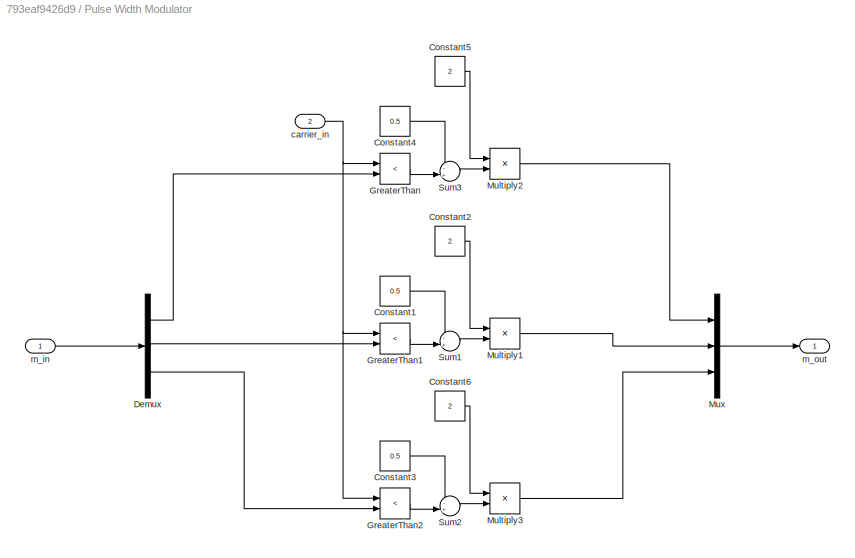
BLOCK [SubSystem] Pulse Width Modulator
  Ports = [2, 1]
  RequestExecContextInheritance = off
BLOCK [Constant] Pulse Width Modulator/Constant1
  Value = 0.5
BLOCK [Constant] Pulse Width Modulator/Constant2
  Value = 2
BLOCK [Constant] Pulse Width Modulator/Constant3
  Value = 0.5
BLOCK [Constant] Pulse Width Modulator/Constant4
  Value = 0.5
BLOCK [Constant] Pulse Width Modulator/Constant5
  Value = 2
BLOCK [Constant] Pulse Width Modulator/Constant6
  Value = 2
BLOCK [Demux] Pulse Width Modulator/Demux
  DisplayOption = bar
  Outputs = 3
  Ports = [1, 3]
BLOCK [RelationalOperator] Pulse Width Modulator/GreaterThan
  InputSameDT = off
  Operator = <
  OutDataTypeStr = boolean
  Ports = [2, 1]
  RndMeth = Simplest
BLOCK [RelationalOperator] Pulse Width Modulator/GreaterThan1
  InputSameDT = off
  Operator = <
  OutDataTypeStr = boolean
  Ports = [2, 1]
  RndMeth = Simplest
BLOCK [RelationalOperator] Pulse Width Modulator/GreaterThan2
  InputSameDT = off
  Operator = <
  OutDataTypeStr = boolean
  Ports = [2, 1]
  RndMeth = Simplest
BLOCK [Product] Pulse Width Modulator/Multiply1
  InputSameDT = off
  OutDataTypeStr = Inherit: Inherit via internal rule
  Ports = [2, 1]
  RndMeth = Floor
  SaturateOnIntegerOverflow = off
BLOCK [Product] Pulse Width Modulator/Multiply2
  InputSameDT = off
  OutDataTypeStr = Inherit: Inherit via internal rule
  Ports = [2, 1]
  RndMeth = Floor
  SaturateOnIntegerOverflow = off
BLOCK [Product] Pulse Width Modulator/Multiply3
  InputSameDT = off
  OutDataTypeStr = Inherit: Inherit via internal rule
  Ports = [2, 1]
  RndMeth = Floor
  SaturateOnIntegerOverflow = off
BLOCK [Mux] Pulse Width Modulator/Mux
  DisplayOption = bar
  Inputs = 3
  Ports = [3, 1]
BLOCK [Sum] Pulse Width Modulator/Sum1
  IconShape = round
  InputSameDT = off
  Inputs = -+|
  OutDataTypeStr = Inherit: Inherit via internal rule
  Ports = [2, 1]
  SaturateOnIntegerOverflow = off
BLOCK [Sum] Pulse Width Modulator/Sum2
  IconShape = round
  InputSameDT = off
  Inputs = -+|
  OutDataTypeStr = Inherit: Inherit via internal rule
  Ports = [2, 1]
  SaturateOnIntegerOverflow = off
BLOCK [Sum] Pulse Width Modulator/Sum3
  IconShape = round
  InputSameDT = off
  Inputs = -+|
  OutDataTypeStr = Inherit: Inherit via internal rule
  Ports = [2, 1]
  SaturateOnIntegerOverflow = off
BLOCK [Inport] Pulse Width Modulator/carrier_in
  IconDisplay = Port number
  Port = 2
BLOCK [Inport] Pulse Width Modulator/m_in
  IconDisplay = Port number
BLOCK [Outport] Pulse Width Modulator/m_out 
  IconDisplay = Port number
BLOCK [Reference] RMS  REF=powerlib_meascontrol/Measurements/RMS
  Ports = [1, 1]
  SourceBlock = powerlib_meascontrol/Measurements/RMS
  SourceProductBaseCode = PS
  SourceProductName = Simscape Power Systems
  SourceType = RMS
BLOCK [Reference] Radians to Degrees  REF=simulink_extras/Transformations/Radians
to Degrees
  Ports = [1, 1]
  SourceBlock = simulink_extras/Transformations/Radians\nto Degrees
  SourceProductBaseCode = SL
  SourceProductName = Simulink
  SourceType = RadiansToDegrees
BLOCK [RateLimiter] Rate Limiter
  FallingSlewLimit = -1000
  RisingSlewLimit = 1000
  SampleTimeMode = inherited
BLOCK [Saturate] Saturation1
  InputPortMap = u0
  LowerLimit = -1
  Ports = [1, 1]
  UpperLimit = 1
BLOCK [Step] Step
  After = 8
  SampleTime = 0
  Time = 0.05
BLOCK [Step] Step1
  After = 6
  SampleTime = 0
  Time = 0.5
BLOCK [Step] Step2
  After = 10000
  SampleTime = 0
  Time = 0.05
BLOCK [Step] Step3
  After = -4
  SampleTime = 0
  Time = 0.5
BLOCK [Step] Step4
  After = 10000
  SampleTime = 0
  Time = 0.05
BLOCK [Sum] Subtract
  InputSameDT = off
  Inputs = +-
  OutDataTypeStr = Inherit: Inherit via internal rule
  Ports = [2, 1]
  SaturateOnIntegerOverflow = off
BLOCK [Sum] Sum
  IconShape = round
  InputSameDT = off
  Inputs = ++|
  OutDataTypeStr = Inherit: Inherit via internal rule
  Ports = [2, 1]
  SaturateOnIntegerOverflow = off
BLOCK [Sum] Sum1
  IconShape = round
  InputSameDT = off
  Inputs = +|+|+
  OutDataTypeStr = Inherit: Inherit via internal rule
  Ports = [3, 1]
  SaturateOnIntegerOverflow = off
BLOCK [Sum] Sum13
  IconShape = round
  InputSameDT = off
  Inputs = -+|
  OutDataTypeStr = Inherit: Inherit via internal rule
  Ports = [2, 1]
  SaturateOnIntegerOverflow = off
BLOCK [Sum] Sum14
  IconShape = round
  InputSameDT = off
  Inputs = -+|
  OutDataTypeStr = Inherit: Inherit via internal rule
  Ports = [2, 1]
  SaturateOnIntegerOverflow = off
BLOCK [Sum] Sum2
  IconShape = round
  InputSameDT = off
  Inputs = ++|
  OutDataTypeStr = Inherit: Inherit via internal rule
  Ports = [2, 1]
  SaturateOnIntegerOverflow = off
BLOCK [Sum] Sum3
  IconShape = round
  InputSameDT = off
  Inputs = -+|
  OutDataTypeStr = Inherit: Inherit via internal rule
  Ports = [2, 1]
  SaturateOnIntegerOverflow = off
BLOCK [Sum] Sum4
  IconShape = round
  InputSameDT = off
  Inputs = +|+|+
  OutDataTypeStr = Inherit: Inherit via internal rule
  Ports = [3, 1]
  SaturateOnIntegerOverflow = off
BLOCK [Sum] Sum5
  IconShape = round
  InputSameDT = off
  Inputs = -+|
  OutDataTypeStr = Inherit: Inherit via internal rule
  Ports = [2, 1]
  SaturateOnIntegerOverflow = off
BLOCK [Sum] Sum6
  IconShape = round
  InputSameDT = off
  Inputs = -+|
  OutDataTypeStr = Inherit: Inherit via internal rule
  Ports = [2, 1]
  SaturateOnIntegerOverflow = off
BLOCK [Sum] Sum7
  IconShape = round
  InputSameDT = off
  OutDataTypeStr = Inherit: Inherit via internal rule
  Ports = [2, 1]
  SaturateOnIntegerOverflow = off
BLOCK [Sum] Sum8
  IconShape = round
  InputSameDT = off
  Inputs = -+|
  OutDataTypeStr = Inherit: Inherit via internal rule
  Ports = [2, 1]
  SaturateOnIntegerOverflow = off
BLOCK [Reference] Symmetrical-Components Transform  REF=peTransforms/Symmetrical-Components
Transform
  Ports = [1, 1]
  SourceBlock = peTransforms/Symmetrical-Components\nTransform
  SourceType = Symmetrical-Components Transform
BLOCK [Reference] THD  REF=powerlib_meascontrol/Measurements/THD
  Ports = [1, 1]
  SourceBlock = powerlib_meascontrol/Measurements/THD
  SourceProductBaseCode = PS
  SourceProductName = Simscape Electrical
  SourceType = THD
BLOCK [Reference] Three-Phase Sine Generator  REF=powerlib_meascontrol/Pulse & Signal
Generators/Three-Phase
Sine Generator
  Ports = [3, 2]
  SourceBlock = powerlib_meascontrol/Pulse & Signal\nGenerators/Three-Phase\nSine Generator
  SourceProductBaseCode = PS
  SourceProductName = Simscape Power Systems
  SourceType = Three-phase Sine Generator
BLOCK [TransferFcn] Transfer Fcn
  Denominator = [1 1]
BLOCK [Reference] Triangle Generator  REF=powerlib_meascontrol/Pulse & Signal
Generators/Triangle
Generator
  Ports = [0, 1]
  SourceBlock = powerlib_meascontrol/Pulse & Signal\nGenerators/Triangle\nGenerator
  SourceProductBaseCode = PS
  SourceProductName = Simscape Electrical
  SourceType = Triangle Generator
ANNOTATION (root): Capacitor
ANNOTATION (root): Capacitor Voltage Reference
ANNOTATION (root): Carrier
ANNOTATION (root): DC power input
ANNOTATION (root): Decoupling Feed-Forward
ANNOTATION (root): Inverse Park Transformation
ANNOTATION (root): Inverter output current
ANNOTATION (root): LINEAR
ANNOTATION (root): PID Compensator
ANNOTATION (root): PLL
ANNOTATION (root): PWM
ANNOTATION (root): Park Transformation
ANNOTATION (root): Power Feed-Forward
ANNOTATION (root): Power Reference
ANNOTATION (root): Voltage
ANNOTATION 3-Phase Half-Bridge: P_dc_in/2
ANNOTATION 3-Phase Half-Bridge: http://tinyurl.com/y849ae5e
LINE 3-Phase Half-Bridge/Add1:1 -> 3-Phase Half-Bridge/Divide4:1
LINE 3-Phase Half-Bridge/Add:1 -> 3-Phase Half-Bridge/Divide2:1
LINE 3-Phase Half-Bridge/Constant10:1 -> 3-Phase Half-Bridge/Subtract:2
LINE 3-Phase Half-Bridge/Constant13:1 -> 3-Phase Half-Bridge/Manual Switch6:2
LINE 3-Phase Half-Bridge/Constant14:1 -> 3-Phase Half-Bridge/Switch7:3
LINE 3-Phase Half-Bridge/Constant15:1 -> 3-Phase Half-Bridge/Switch8:3
LINE 3-Phase Half-Bridge/Constant16:1 -> 3-Phase Half-Bridge/Switch9:1
LINE 3-Phase Half-Bridge/Constant17:1 -> 3-Phase Half-Bridge/Switch10:1
LINE 3-Phase Half-Bridge/Constant18:1 -> 3-Phase Half-Bridge/Switch11:1
LINE 3-Phase Half-Bridge/Constant7:1 -> 3-Phase Half-Bridge/Switch6:3
LINE 3-Phase Half-Bridge/Constant8:1 -> 3-Phase Half-Bridge/Divide3:2
LINE 3-Phase Half-Bridge/Current Measurement1:1 -> 3-Phase Half-Bridge/Goto15:1
LINE 3-Phase Half-Bridge/Current Measurement:1 -> 3-Phase Half-Bridge/Goto14:1
LINE 3-Phase Half-Bridge/DC_POWER_IN:1 -> 3-Phase Half-Bridge/Multiply4:1
LINE 3-Phase Half-Bridge/Demux5:1 -> 3-Phase Half-Bridge/Divide:1
LINE 3-Phase Half-Bridge/Demux5:2 -> 3-Phase Half-Bridge/Divide1:2
LINE 3-Phase Half-Bridge/Demux6:1 -> 3-Phase Half-Bridge/Transfer Fcn1:1
LINE 3-Phase Half-Bridge/Demux6:2 -> 3-Phase Half-Bridge/Transfer Fcn:1
LINE 3-Phase Half-Bridge/Demux6:3 -> 3-Phase Half-Bridge/Transfer Fcn2:1
NET 3-Phase Half-Bridge/Divide1:1 -> 3-Phase Half-Bridge/Controlled Current Source9:1, 3-Phase Half-Bridge/Goto16:1
LINE 3-Phase Half-Bridge/Divide2:1 -> 3-Phase Half-Bridge/Gain:1
NET 3-Phase Half-Bridge/Divide3:1 -> 3-Phase Half-Bridge/Multiply15:2, 3-Phase Half-Bridge/Sum1:2
LINE 3-Phase Half-Bridge/Divide4:1 -> 3-Phase Half-Bridge/Gain1:1
NET 3-Phase Half-Bridge/Divide:1 -> 3-Phase Half-Bridge/Controlled Current Source:1, 3-Phase Half-Bridge/Goto17:1
LINE 3-Phase Half-Bridge/From10:1 -> 3-Phase Half-Bridge/Controlled Current Source3:1
LINE 3-Phase Half-Bridge/From11:1 -> 3-Phase Half-Bridge/Multiply5:1
LINE 3-Phase Half-Bridge/From12:1 -> 3-Phase Half-Bridge/Multiply5:2
LINE 3-Phase Half-Bridge/From13:1 -> 3-Phase Half-Bridge/Multiply7:1
LINE 3-Phase Half-Bridge/From14:1 -> 3-Phase Half-Bridge/Multiply7:2
LINE 3-Phase Half-Bridge/From15:1 -> 3-Phase Half-Bridge/Multiply8:1
LINE 3-Phase Half-Bridge/From16:1 -> 3-Phase Half-Bridge/Multiply8:2
LINE 3-Phase Half-Bridge/From17:1 -> 3-Phase Half-Bridge/Divide2:2
LINE 3-Phase Half-Bridge/From18:1 -> 3-Phase Half-Bridge/Multiply9:1
LINE 3-Phase Half-Bridge/From19:1 -> 3-Phase Half-Bridge/Multiply9:2
LINE 3-Phase Half-Bridge/From1:1 -> 3-Phase Half-Bridge/Subtract2:1
LINE 3-Phase Half-Bridge/From20:1 -> 3-Phase Half-Bridge/Multiply10:1
LINE 3-Phase Half-Bridge/From21:1 -> 3-Phase Half-Bridge/Multiply10:2
LINE 3-Phase Half-Bridge/From22:1 -> 3-Phase Half-Bridge/Multiply11:1
LINE 3-Phase Half-Bridge/From23:1 -> 3-Phase Half-Bridge/Multiply11:2
LINE 3-Phase Half-Bridge/From24:1 -> 3-Phase Half-Bridge/Divide4:2
LINE 3-Phase Half-Bridge/From25:1 -> 3-Phase Half-Bridge/RMS:1
LINE 3-Phase Half-Bridge/From26:1 -> 3-Phase Half-Bridge/RMS1:1
LINE 3-Phase Half-Bridge/From27:1 -> 3-Phase Half-Bridge/Subtract2:2
LINE 3-Phase Half-Bridge/From28:1 -> 3-Phase Half-Bridge/Subtract3:1
LINE 3-Phase Half-Bridge/From29:1 -> 3-Phase Half-Bridge/Subtract3:2
LINE 3-Phase Half-Bridge/From2:1 -> 3-Phase Half-Bridge/Subtract1:1
LINE 3-Phase Half-Bridge/From30:1 -> 3-Phase Half-Bridge/Multiply:1
LINE 3-Phase Half-Bridge/From32:1 -> 3-Phase Half-Bridge/Multiply:2
LINE 3-Phase Half-Bridge/From33:1 -> 3-Phase Half-Bridge/Multiply1:1
LINE 3-Phase Half-Bridge/From34:1 -> 3-Phase Half-Bridge/Multiply1:2
LINE 3-Phase Half-Bridge/From3:1 -> 3-Phase Half-Bridge/Subtract1:2
LINE 3-Phase Half-Bridge/From4:1 -> 3-Phase Half-Bridge/Sum1:1
LINE 3-Phase Half-Bridge/From5:1 -> 3-Phase Half-Bridge/Controlled Current Source4:1
LINE 3-Phase Half-Bridge/From6:1 -> 3-Phase Half-Bridge/Controlled Current Source5:1
LINE 3-Phase Half-Bridge/From7:1 -> 3-Phase Half-Bridge/Controlled Current Source6:1
LINE 3-Phase Half-Bridge/From8:1 -> 3-Phase Half-Bridge/Controlled Current Source1:1
LINE 3-Phase Half-Bridge/From9:1 -> 3-Phase Half-Bridge/Controlled Current Source2:1
LINE 3-Phase Half-Bridge/Gain1:1 -> 3-Phase Half-Bridge/Controlled Current Source8:1
LINE 3-Phase Half-Bridge/Gain:1 -> 3-Phase Half-Bridge/Controlled Current Source7:1
LINE 3-Phase Half-Bridge/Manual Switch6:1 -> 3-Phase Half-Bridge/Multiply4:2
LINE 3-Phase Half-Bridge/Multiply10:1 -> 3-Phase Half-Bridge/Add1:2
LINE 3-Phase Half-Bridge/Multiply11:1 -> 3-Phase Half-Bridge/Add1:3
LINE 3-Phase Half-Bridge/Multiply15:1 -> 3-Phase Half-Bridge/Demux6:1
LINE 3-Phase Half-Bridge/Multiply1:1 -> 3-Phase Half-Bridge/Subtract4:2
LINE 3-Phase Half-Bridge/Multiply4:1 -> 3-Phase Half-Bridge/Demux5:1
LINE 3-Phase Half-Bridge/Multiply5:1 -> 3-Phase Half-Bridge/Add:1
LINE 3-Phase Half-Bridge/Multiply7:1 -> 3-Phase Half-Bridge/Add:2
LINE 3-Phase Half-Bridge/Multiply8:1 -> 3-Phase Half-Bridge/Add:3
LINE 3-Phase Half-Bridge/Multiply9:1 -> 3-Phase Half-Bridge/Add1:1
LINE 3-Phase Half-Bridge/Multiply:1 -> 3-Phase Half-Bridge/Subtract4:1
LINE 3-Phase Half-Bridge/Mux5:1 -> 3-Phase Half-Bridge/Manual Switch6:1
NET 3-Phase Half-Bridge/PID Controller:1 -> 3-Phase Half-Bridge/Mux5:1, 3-Phase Half-Bridge/Subtract:1
LINE 3-Phase Half-Bridge/Step:1 -> 3-Phase Half-Bridge/Ideal Switch:1
LINE 3-Phase Half-Bridge/Subtract1:1 -> 3-Phase Half-Bridge/Divide3:1
LINE 3-Phase Half-Bridge/Subtract2:1 -> 3-Phase Half-Bridge/IDC:1
LINE 3-Phase Half-Bridge/Subtract3:1 -> 3-Phase Half-Bridge/VDC:1
LINE 3-Phase Half-Bridge/Subtract4:1 -> 3-Phase Half-Bridge/PDC:1
LINE 3-Phase Half-Bridge/Subtract:1 -> 3-Phase Half-Bridge/Mux5:2
LINE 3-Phase Half-Bridge/Sum1:1 -> 3-Phase Half-Bridge/PID Controller:1
LINE 3-Phase Half-Bridge/Switch10:1 -> 3-Phase Half-Bridge/Goto6:1
LINE 3-Phase Half-Bridge/Switch11:1 -> 3-Phase Half-Bridge/Goto7:1
LINE 3-Phase Half-Bridge/Switch6:1 -> 3-Phase Half-Bridge/Goto:1
LINE 3-Phase Half-Bridge/Switch7:1 -> 3-Phase Half-Bridge/Goto3:1
LINE 3-Phase Half-Bridge/Switch8:1 -> 3-Phase Half-Bridge/Goto4:1
LINE 3-Phase Half-Bridge/Switch9:1 -> 3-Phase Half-Bridge/Goto5:1
LINE 3-Phase Half-Bridge/Three-Phase V-I Measurement:1 -> 3-Phase Half-Bridge/Us:1
LINE 3-Phase Half-Bridge/Three-Phase V-I Measurement:2 -> 3-Phase Half-Bridge/i_out:1
NET 3-Phase Half-Bridge/Transfer Fcn1:1 -> 3-Phase Half-Bridge/Switch6:1, 3-Phase Half-Bridge/Switch6:2, 3-Phase Half-Bridge/Switch9:2, 3-Phase Half-Bridge/Switch9:3
NET 3-Phase Half-Bridge/Transfer Fcn2:1 -> 3-Phase Half-Bridge/Switch11:2, 3-Phase Half-Bridge/Switch11:3, 3-Phase Half-Bridge/Switch8:1, 3-Phase Half-Bridge/Switch8:2
NET 3-Phase Half-Bridge/Transfer Fcn:1 -> 3-Phase Half-Bridge/Switch10:2, 3-Phase Half-Bridge/Switch10:3, 3-Phase Half-Bridge/Switch7:1, 3-Phase Half-Bridge/Switch7:2
NET 3-Phase Half-Bridge/Voltage Measurement1:1 -> 3-Phase Half-Bridge/Divide1:1, 3-Phase Half-Bridge/Goto1:1
LINE 3-Phase Half-Bridge/Voltage Measurement2:1 -> 3-Phase Half-Bridge/Goto9:1
LINE 3-Phase Half-Bridge/Voltage Measurement3:1 -> 3-Phase Half-Bridge/Goto8:1
LINE 3-Phase Half-Bridge/Voltage Measurement4:1 -> 3-Phase Half-Bridge/Goto10:1
LINE 3-Phase Half-Bridge/Voltage Measurement5:1 -> 3-Phase Half-Bridge/Goto11:1
LINE 3-Phase Half-Bridge/Voltage Measurement6:1 -> 3-Phase Half-Bridge/Goto12:1
LINE 3-Phase Half-Bridge/Voltage Measurement7:1 -> 3-Phase Half-Bridge/Goto13:1
NET 3-Phase Half-Bridge/Voltage Measurement:1 -> 3-Phase Half-Bridge/Divide:2, 3-Phase Half-Bridge/Goto2:1
LINE 3-Phase Half-Bridge/modulation_in:1 -> 3-Phase Half-Bridge/Multiply15:1
NET 3-Phase Half-Bridge:1 -> Park Transform1:1, Power Measurement:2, Power:2, THD:1
NET 3-Phase Half-Bridge:2 -> PLL (3ph)1:1, Park Transform:1, Power Measurement:1, Power:1, RMS:1, Symmetrical-Components Transform:1
NET 3-Phase Half-Bridge:3 -> Gain1:1, Goto4:1
NET 3-Phase Half-Bridge:4 -> Gain4:1, Goto5:1
NET 3-Phase Half-Bridge:5 -> Gain2:1, Goto6:1
LINE Add1:1 -> Divide12:1
LINE Add2:1 -> Divide13:2
LINE Add:1 -> Multiply4:1
LINE Constant11:1 -> Divide8:2
LINE Constant12:1 -> Divide9:2
LINE Constant13:1 -> Divide11:2
LINE Constant14:1 -> Divide12:2
LINE Constant15:1 -> Sum6:2
LINE Constant16:1 -> Manual Switch3:2
LINE Constant17:1 -> Three-Phase Sine Generator:1
LINE Constant1:1 -> Multiply2:1
LINE Constant2:1 -> Divide:2
LINE Constant3:1 -> Add:1
LINE Constant4:1 -> Divide2:2
LINE Constant5:1 -> Manual Switch4:1
LINE Constant6:1 -> Divide4:2
LINE Constant7:1 -> Multiply1:1
LINE Constant8:1 -> Multiply7:1
LINE Constant9:1 -> Mux:3
LINE Constant:1 -> Multiply:1
LINE Demux1:1 -> Add1:1
LINE Demux1:2 -> Add1:2
LINE Demux1:3 -> Add1:3
LINE Demux2:1 -> Goto:1
NET Demux3:1 -> PID Controller2:1, Sum13:1
NET Demux3:2 -> PID Controller3:1, Sum14:1
LINE Demux3:3 -> Sum8:1
LINE Demux4:1 -> Sum13:2
LINE Demux4:2 -> Sum14:2
LINE Demux4:3 -> Sum8:2
LINE Divide10:1 -> Mux2:3
NET Divide11:1 -> Divide10:2, Divide6:2, Divide7:2
LINE Divide12:1 -> Sum3:2
LINE Divide13:1 -> Manual Switch3:1
LINE Divide1:1 -> Mux:1
LINE Divide5:1 -> Mux:2
LINE Divide6:1 -> Mux2:2
LINE Divide7:1 -> Mux2:1
LINE Divide8:1 -> Sum5:1
LINE Divide9:1 -> Add:2
LINE From1:1 -> Inverse Park Transform:2
LINE From2:1 -> Park Transform1:2
LINE From3:1 -> Gain5:1
LINE From4:1 -> Radians to Degrees:1
LINE From5:1 -> Manual Switch1:2
LINE From6:1 -> Sum6:1
LINE From7:1 -> Divide11:1
LINE From8:1 -> Park Transform2:2
NET From:1 -> Divide1:2, Divide5:2
LINE Gain5:1 -> Rate Limiter:1
LINE Gain:1 -> PID Controller7:1
LINE Inverse Park Transform:1 -> Saturation1:1
LINE Manual Switch1:1 -> Demux4:1
LINE Manual Switch2:1 -> Multiply3:1
LINE Manual Switch3:1 -> Multiply3:2
LINE Manual Switch4:1 -> Sum7:1
LINE Manual Switch:1 -> 3-Phase Half-Bridge:1
LINE Multiply1:1 -> Divide1:1
LINE Multiply2:1 -> Multiply7:2
LINE Multiply3:1 -> Sum5:2
LINE Multiply4:1 -> Subtract:1
LINE Multiply7:1 -> Divide5:1
LINE Multiply:1 -> Multiply1:2
LINE Mux2:1 -> Inverse Park Transform:1
LINE Mux:1 -> Manual Switch1:1
LINE PID Controller1:1 -> Sum2:2
LINE PID Controller2:1 -> Sum2:1
LINE PID Controller3:1 -> Sum:1
NET PID Controller4:1 -> Add2:1, Divide13:1
LINE PID Controller5:1 -> Divide10:1
LINE PID Controller6:1 -> Divide9:1
LINE PID Controller7:1 -> Sum7:2
LINE PID Controller:1 -> Sum:2
NET PLL (3ph)1:2 -> Goto1:1, Park Transform:2
LINE Park Transform1:1 -> Demux3:1
LINE Park Transform2:1 -> Goto3:1
LINE Park Transform:1 -> Demux2:1
LINE Power Measurement/Add1:1 -> Power Measurement/Q_out:1
LINE Power Measurement/Add:1 -> Power Measurement/P_out:1
LINE Power Measurement/Demux3:1 -> Power Measurement/Power:2
LINE Power Measurement/Demux3:2 -> Power Measurement/Power1:2
LINE Power Measurement/Demux3:3 -> Power Measurement/Power2:2
LINE Power Measurement/Demux:1 -> Power Measurement/Power:1
LINE Power Measurement/Demux:2 -> Power Measurement/Power1:1
LINE Power Measurement/Demux:3 -> Power Measurement/Power2:1
LINE Power Measurement/Power1:1 -> Power Measurement/Add:2
LINE Power Measurement/Power1:2 -> Power Measurement/Add1:2
LINE Power Measurement/Power2:1 -> Power Measurement/Add:3
LINE Power Measurement/Power2:2 -> Power Measurement/Add1:3
LINE Power Measurement/Power:1 -> Power Measurement/Add:1
LINE Power Measurement/Power:2 -> Power Measurement/Add1:1
LINE Power Measurement/iabc_in:1 -> Power Measurement/Demux3:1
LINE Power Measurement/uabc_in:1 -> Power Measurement/Demux:1
LINE Power Measurement:1 -> Divide:1
LINE Power Measurement:2 -> Divide2:1
LINE Power:1 -> Divide8:1
LINE Power:2 -> Divide4:1
LINE Pulse Width Modulator/Constant1:1 -> Pulse Width Modulator/Sum1:1
LINE Pulse Width Modulator/Constant2:1 -> Pulse Width Modulator/Multiply1:1
LINE Pulse Width Modulator/Constant3:1 -> Pulse Width Modulator/Sum2:1
LINE Pulse Width Modulator/Constant4:1 -> Pulse Width Modulator/Sum3:1
LINE Pulse Width Modulator/Constant5:1 -> Pulse Width Modulator/Multiply2:1
LINE Pulse Width Modulator/Constant6:1 -> Pulse Width Modulator/Multiply3:1
LINE Pulse Width Modulator/Demux:1 -> Pulse Width Modulator/GreaterThan:2
LINE Pulse Width Modulator/Demux:2 -> Pulse Width Modulator/GreaterThan1:2
LINE Pulse Width Modulator/Demux:3 -> Pulse Width Modulator/GreaterThan2:2
LINE Pulse Width Modulator/GreaterThan1:1 -> Pulse Width Modulator/Sum1:2
LINE Pulse Width Modulator/GreaterThan2:1 -> Pulse Width Modulator/Sum2:2
LINE Pulse Width Modulator/GreaterThan:1 -> Pulse Width Modulator/Sum3:2
LINE Pulse Width Modulator/Multiply1:1 -> Pulse Width Modulator/Mux:2
LINE Pulse Width Modulator/Multiply2:1 -> Pulse Width Modulator/Mux:1
LINE Pulse Width Modulator/Multiply3:1 -> Pulse Width Modulator/Mux:3
LINE Pulse Width Modulator/Mux:1 -> Pulse Width Modulator/m_out :1
LINE Pulse Width Modulator/Sum1:1 -> Pulse Width Modulator/Multiply1:2
LINE Pulse Width Modulator/Sum2:1 -> Pulse Width Modulator/Multiply3:2
LINE Pulse Width Modulator/Sum3:1 -> Pulse Width Modulator/Multiply2:2
NET Pulse Width Modulator/carrier_in:1 -> Pulse Width Modulator/GreaterThan1:1, Pulse Width Modulator/GreaterThan2:1, Pulse Width Modulator/GreaterThan:1
LINE Pulse Width Modulator/m_in:1 -> Pulse Width Modulator/Demux:1
LINE Pulse Width Modulator:1 -> Manual Switch:2
NET RMS:1 -> Demux1:1, Sum3:1
LINE Radians to Degrees:1 -> Three-Phase Sine Generator:2
LINE Rate Limiter:1 -> Manual Switch4:2
NET Saturation1:1 -> Manual Switch:1, Pulse Width Modulator:1
LINE Step2:1 -> 3-Phase Half-Bridge:2
LINE Step3:1 -> Sum1:1
LINE Step4:1 -> Manual Switch2:2
LINE Step:1 -> Sum1:2
LINE Subtract:1 -> Park Transform2:1
LINE Sum13:1 -> PID Controller:1
LINE Sum14:1 -> PID Controller1:1
LINE Sum1:1 -> Multiply:2
LINE Sum2:1 -> Divide6:1
LINE Sum3:1 -> PID Controller4:1
LINE Sum4:1 -> Multiply2:2
LINE Sum5:1 -> PID Controller6:1
LINE Sum6:1 -> Gain:1
LINE Sum7:1 -> Manual Switch2:1
LINE Sum8:1 -> PID Controller5:1
LINE Sum:1 -> Divide7:1
NET Three-Phase Sine Generator:1 -> Multiply4:2, Subtract:2
LINE Triangle Generator:1 -> Pulse Width Modulator:2
PNET net1: 3-Phase Half-Bridge/Controlled Current Source1:LConn1 -- 3-Phase Half-Bridge/Ground4:LConn1 -- 3-Phase Half-Bridge/Series RLC Branch3:RConn1 -- 3-Phase Half-Bridge/Voltage Measurement5:LConn1
PNET net2: 3-Phase Half-Bridge/Controlled Current Source1:RConn1 -- 3-Phase Half-Bridge/Controlled Current Source4:RConn1 -- 3-Phase Half-Bridge/Series RLC Branch3:LConn1 -- 3-Phase Half-Bridge/Series RLC Branch6:RConn1 -- 3-Phase Half-Bridge/Three-Phase Series RLC Branch1:LConn1 -- 3-Phase Half-Bridge/Voltage Measurement2:LConn2 -- 3-Phase Half-Bridge/Voltage Measurement5:LConn2
PNET net3: 3-Phase Half-Bridge/Controlled Current Source2:LConn1 -- 3-Phase Half-Bridge/Ground6:LConn1 -- 3-Phase Half-Bridge/Series RLC Branch4:RConn1 -- 3-Phase Half-Bridge/Voltage Measurement6:LConn1
PNET net4: 3-Phase Half-Bridge/Controlled Current Source2:RConn1 -- 3-Phase Half-Bridge/Controlled Current Source5:RConn1 -- 3-Phase Half-Bridge/Series RLC Branch4:LConn1 -- 3-Phase Half-Bridge/Series RLC Branch7:RConn1 -- 3-Phase Half-Bridge/Three-Phase Series RLC Branch1:LConn2 -- 3-Phase Half-Bridge/Voltage Measurement3:LConn2 -- 3-Phase Half-Bridge/Voltage Measurement6:LConn2
PNET net5: 3-Phase Half-Bridge/Controlled Current Source3:LConn1 -- 3-Phase Half-Bridge/Ground7:LConn1 -- 3-Phase Half-Bridge/Series RLC Branch5:RConn1 -- 3-Phase Half-Bridge/Voltage Measurement7:LConn1
PNET net6: 3-Phase Half-Bridge/Controlled Current Source3:RConn1 -- 3-Phase Half-Bridge/Controlled Current Source6:RConn1 -- 3-Phase Half-Bridge/Series RLC Branch5:LConn1 -- 3-Phase Half-Bridge/Series RLC Branch8:RConn1 -- 3-Phase Half-Bridge/Three-Phase Series RLC Branch1:LConn3 -- 3-Phase Half-Bridge/Voltage Measurement4:LConn2 -- 3-Phase Half-Bridge/Voltage Measurement7:LConn2
PNET net7: 3-Phase Half-Bridge/Controlled Current Source4:LConn1 -- 3-Phase Half-Bridge/Ground3:LConn1 -- 3-Phase Half-Bridge/Series RLC Branch6:LConn1 -- 3-Phase Half-Bridge/Voltage Measurement2:LConn1
PNET net8: 3-Phase Half-Bridge/Controlled Current Source5:LConn1 -- 3-Phase Half-Bridge/Ground8:LConn1 -- 3-Phase Half-Bridge/Series RLC Branch7:LConn1 -- 3-Phase Half-Bridge/Voltage Measurement3:LConn1
PNET net9: 3-Phase Half-Bridge/Controlled Current Source6:LConn1 -- 3-Phase Half-Bridge/Ground9:LConn1 -- 3-Phase Half-Bridge/Series RLC Branch8:LConn1 -- 3-Phase Half-Bridge/Voltage Measurement4:LConn1
PNET net10: 3-Phase Half-Bridge/Controlled Current Source7:LConn1 -- 3-Phase Half-Bridge/Current Measurement:LConn1 -- 3-Phase Half-Bridge/Series RLC Branch2:LConn1 -- 3-Phase Half-Bridge/Voltage Measurement:LConn1
PNET net11: 3-Phase Half-Bridge/Controlled Current Source7:RConn1 -- 3-Phase Half-Bridge/Controlled Current Source8:RConn1 -- 3-Phase Half-Bridge/Controlled Current Source9:LConn1 -- 3-Phase Half-Bridge/Controlled Current Source:LConn1 -- 3-Phase Half-Bridge/Ground1:LConn1 -- 3-Phase Half-Bridge/Series RLC Branch1:LConn1 -- 3-Phase Half-Bridge/Series RLC Branch:RConn1 -- 3-Phase Half-Bridge/Voltage Measurement1:LConn2 -- 3-Phase Half-Bridge/Voltage Measurement:LConn2
PNET net12: 3-Phase Half-Bridge/Controlled Current Source8:LConn1 -- 3-Phase Half-Bridge/Current Measurement1:LConn1 -- 3-Phase Half-Bridge/Series RLC Branch9:LConn1 -- 3-Phase Half-Bridge/Voltage Measurement1:LConn1
PLINE 3-Phase Half-Bridge/Controlled Current Source9:RConn1 -- 3-Phase Half-Bridge/Series RLC Branch9:RConn1
PLINE 3-Phase Half-Bridge/Controlled Current Source:RConn1 -- 3-Phase Half-Bridge/Series RLC Branch2:RConn1
PLINE 3-Phase Half-Bridge/Current Measurement1:RConn1 -- 3-Phase Half-Bridge/Series RLC Branch1:RConn1
PLINE 3-Phase Half-Bridge/Current Measurement:RConn1 -- 3-Phase Half-Bridge/Series RLC Branch:LConn1
PLINE 3-Phase Half-Bridge/Ground2:LConn1 -- 3-Phase Half-Bridge/Three-Phase Source:LConn1
PLINE 3-Phase Half-Bridge/Ground5:LConn1 -- 3-Phase Half-Bridge/Ideal Switch:LConn1
PLINE 3-Phase Half-Bridge/Ideal Switch:RConn1 -- 3-Phase Half-Bridge/Series RLC Branch10:RConn1
PNET net13: 3-Phase Half-Bridge/Series RLC Branch10:LConn1 -- 3-Phase Half-Bridge/Three-Phase Series RLC Branch:LConn1 -- 3-Phase Half-Bridge/Three-Phase V-I Measurement:RConn1
PLINE 3-Phase Half-Bridge/Three-Phase Series RLC Branch1:RConn1 -- 3-Phase Half-Bridge/Three-Phase V-I Measurement:LConn1
PLINE 3-Phase Half-Bridge/Three-Phase Series RLC Branch1:RConn2 -- 3-Phase Half-Bridge/Three-Phase V-I Measurement:LConn2
PLINE 3-Phase Half-Bridge/Three-Phase Series RLC Branch1:RConn3 -- 3-Phase Half-Bridge/Three-Phase V-I Measurement:LConn3
PLINE 3-Phase Half-Bridge/Three-Phase Series RLC Branch:LConn2 -- 3-Phase Half-Bridge/Three-Phase V-I Measurement:RConn2
PLINE 3-Phase Half-Bridge/Three-Phase Series RLC Branch:LConn3 -- 3-Phase Half-Bridge/Three-Phase V-I Measurement:RConn3
PLINE 3-Phase Half-Bridge/Three-Phase Series RLC Branch:RConn1 -- 3-Phase Half-Bridge/Three-Phase Source:RConn1
PLINE 3-Phase Half-Bridge/Three-Phase Series RLC Branch:RConn2 -- 3-Phase Half-Bridge/Three-Phase Source:RConn2
PLINE 3-Phase Half-Bridge/Three-Phase Series RLC Branch:RConn3 -- 3-Phase Half-Bridge/Three-Phase Source:RConn3
note: NET lines group one-source signal fan-out (src -> all destinations, sorted); 1:1 wires keep LINE; PNET lines group multi-terminal physical nets as a canonical sorted terminal list (undirected conserving connections); 2-terminal nets keep the pairwise PLINE form
